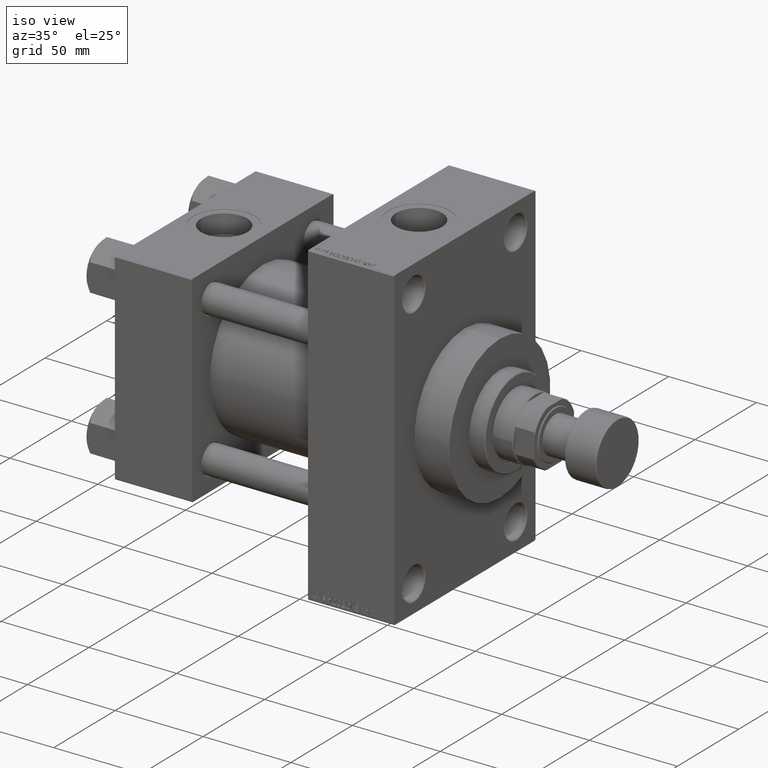
[diagram: clean part render]
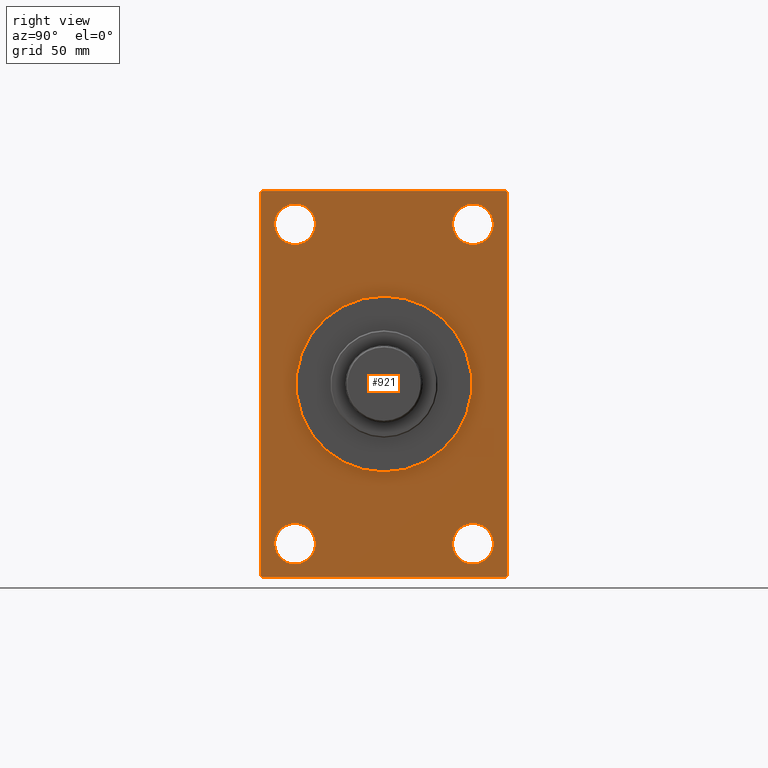
[diagram: tour spotlight — one face highlighted and labeled with its STEP entity id]
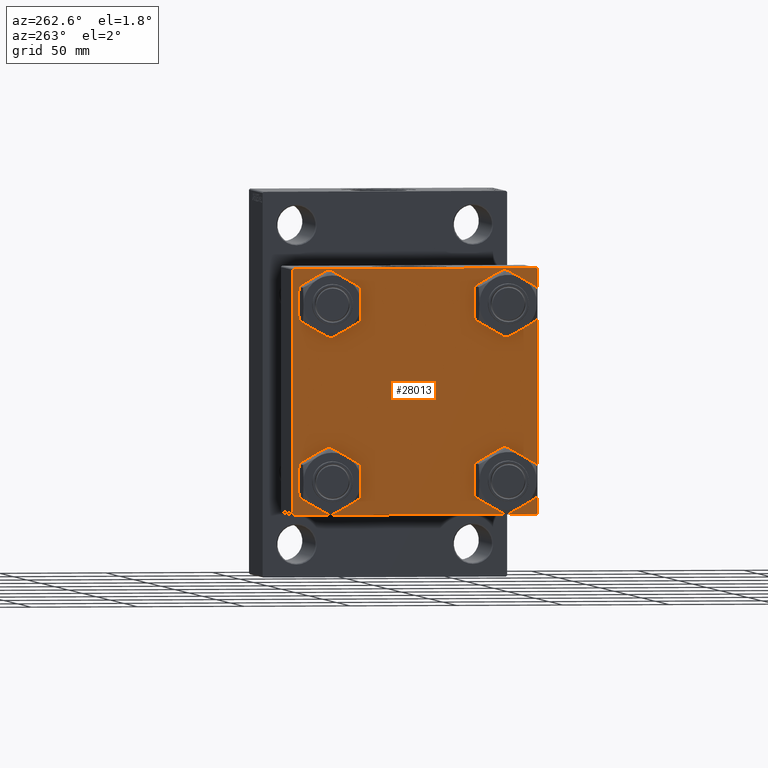
[diagram: tour spotlight — one face highlighted and labeled with its STEP entity id]
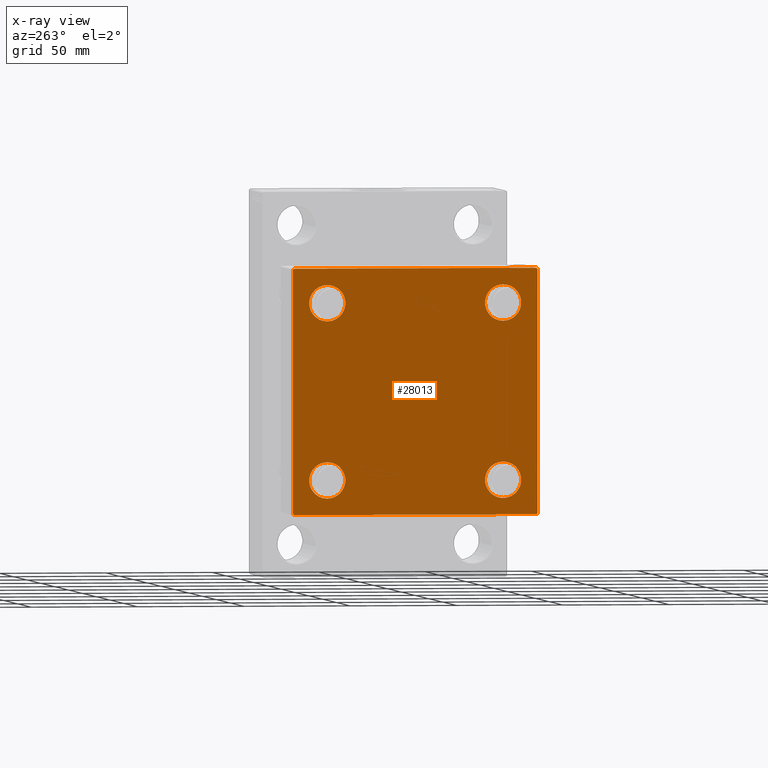
[diagram: x-ray of the same camera — body ghosted, this tour face saturated]
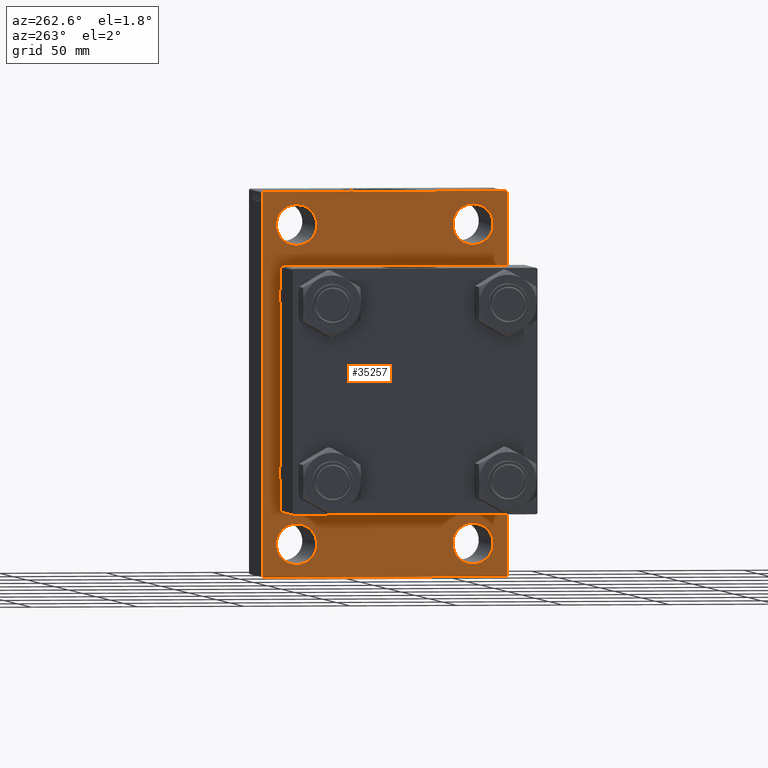
[diagram: tour spotlight — one face highlighted and labeled with its STEP entity id]
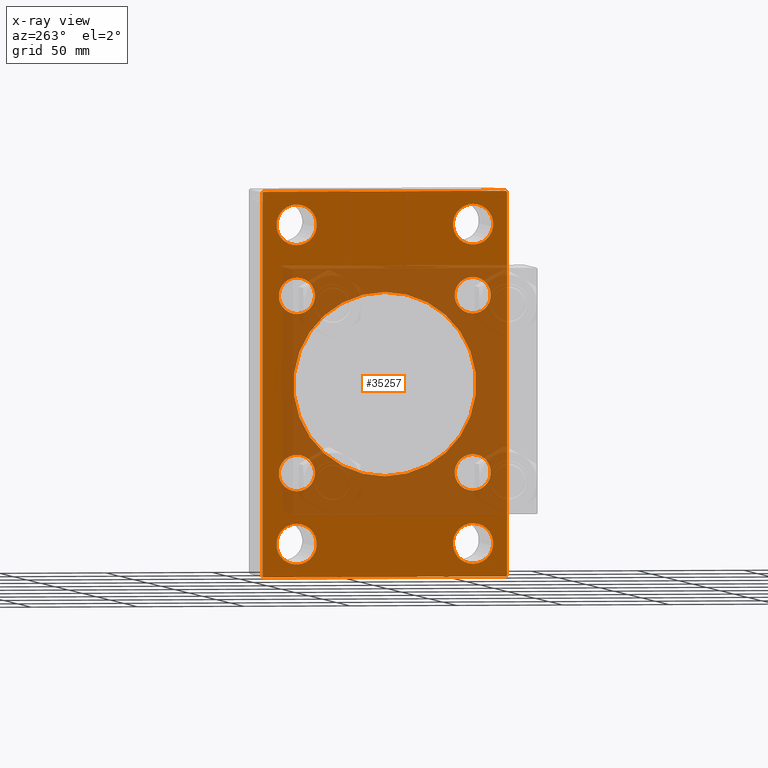
[diagram: x-ray of the same camera — body ghosted, this tour face saturated]
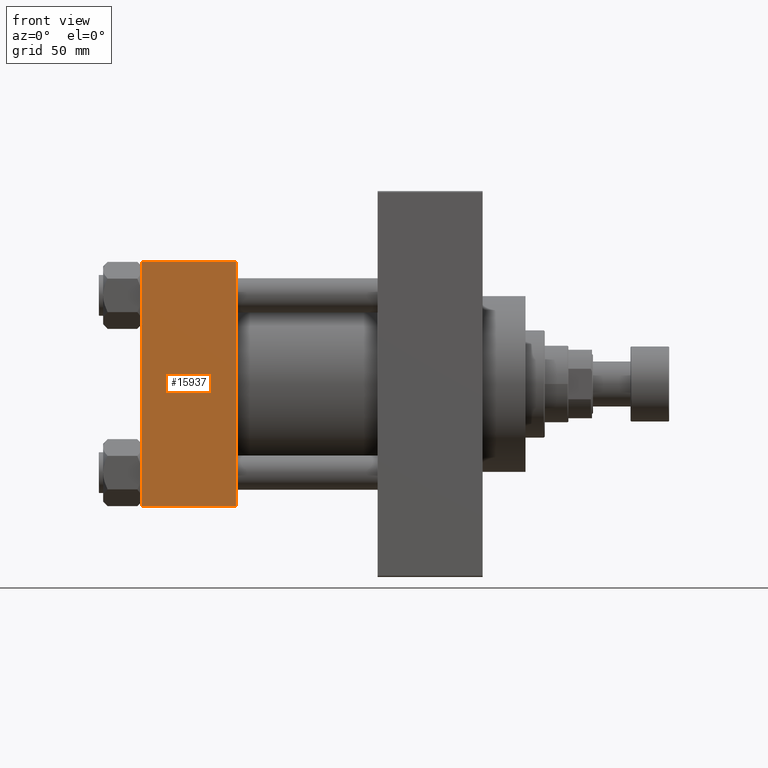
[diagram: tour spotlight — one face highlighted and labeled with its STEP entity id]
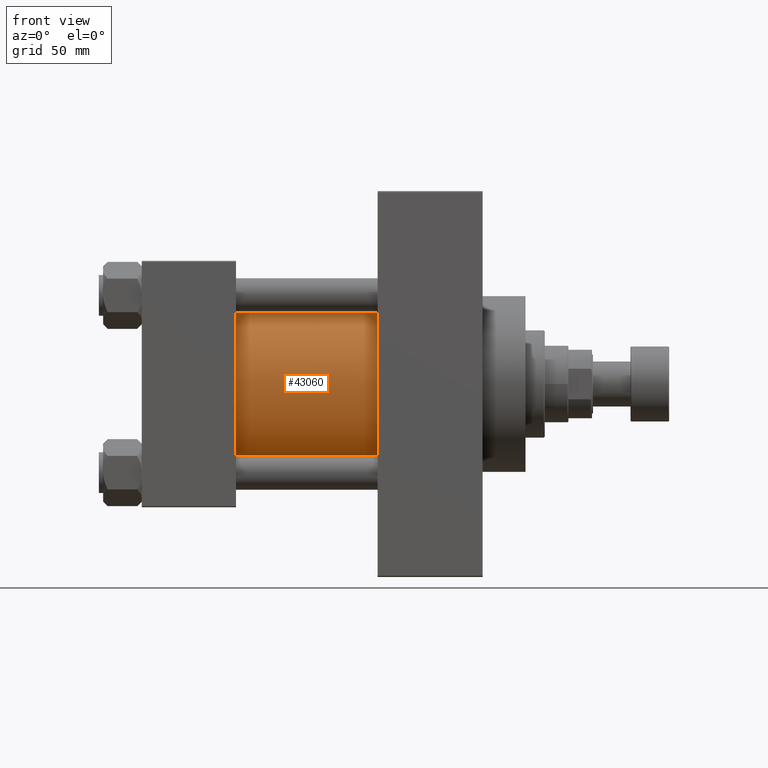
[diagram: tour spotlight — one face highlighted and labeled with its STEP entity id]
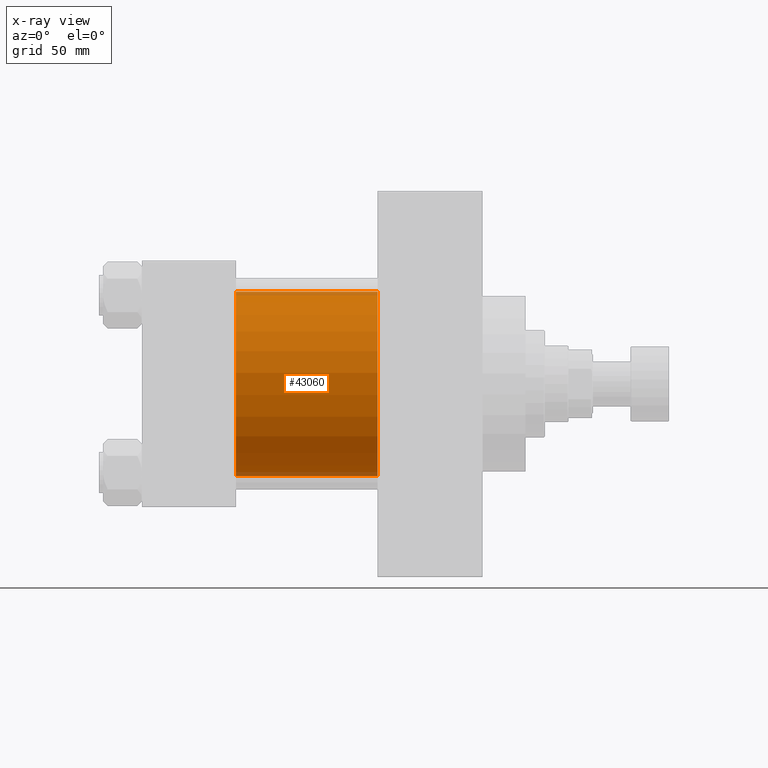
[diagram: x-ray of the same camera — body ghosted, this tour face saturated]
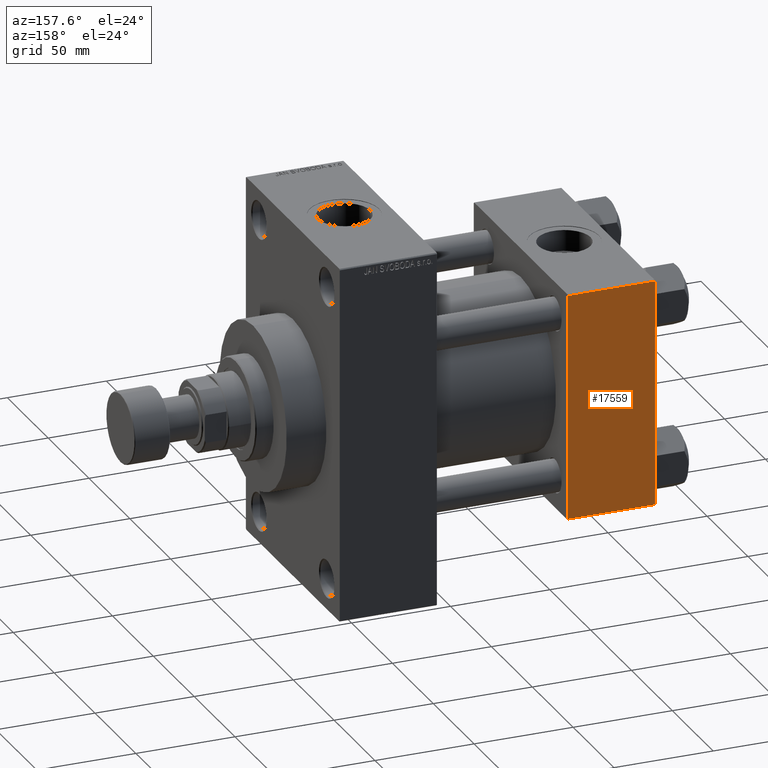
[diagram: tour spotlight — one face highlighted and labeled with its STEP entity id]
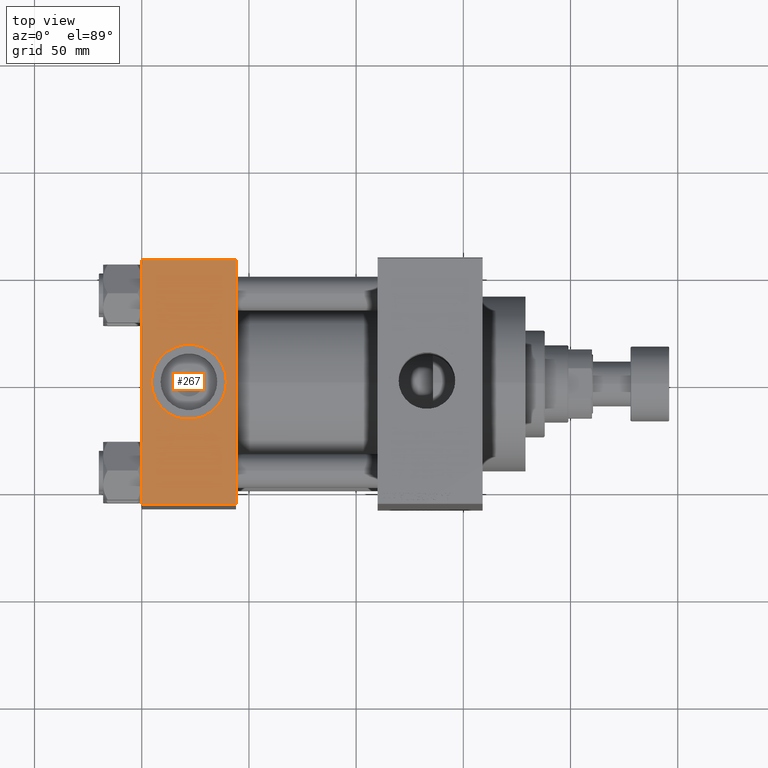
[diagram: tour spotlight — one face highlighted and labeled with its STEP entity id]
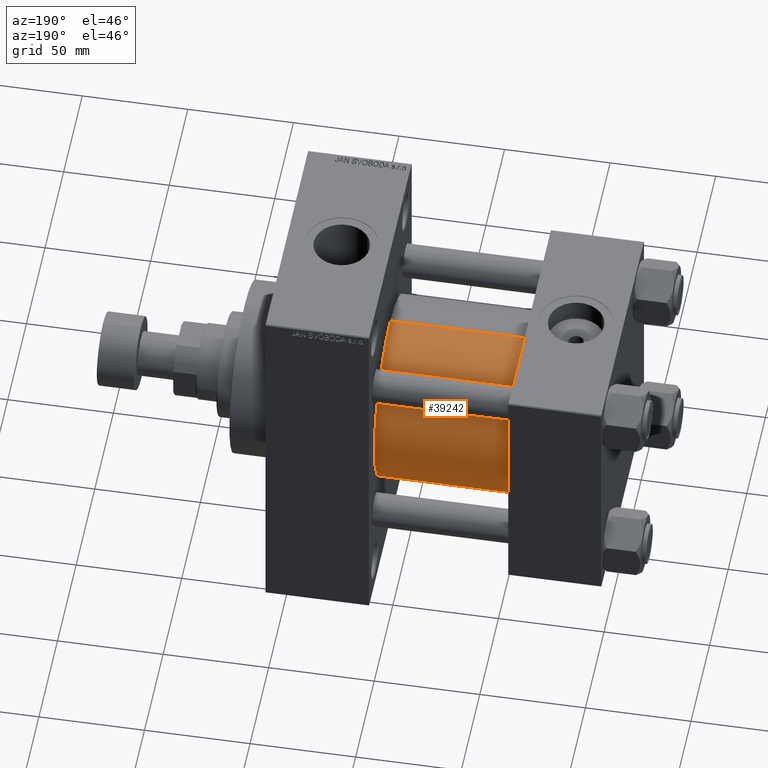
[diagram: tour spotlight — one face highlighted and labeled with its STEP entity id]
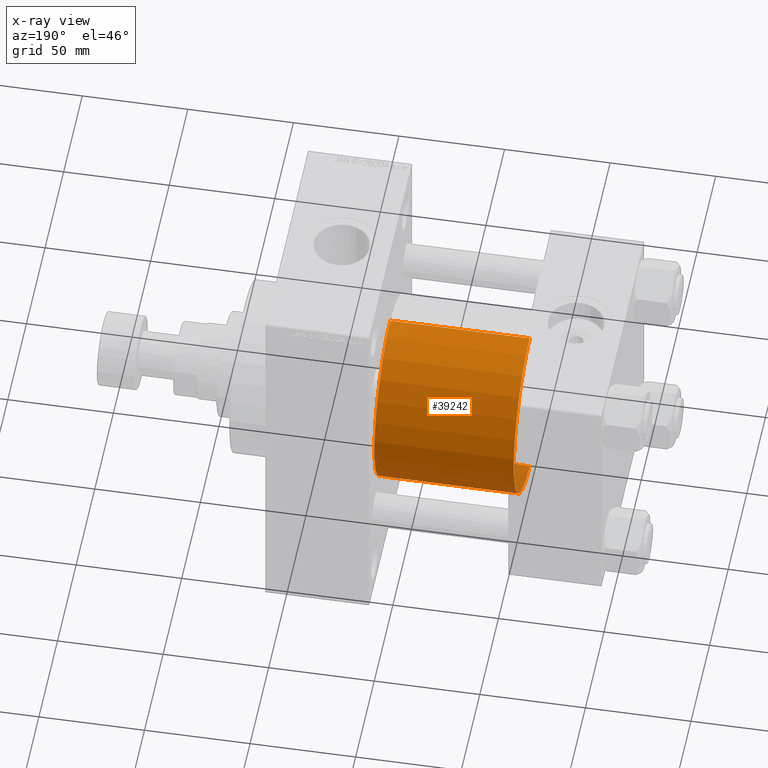
[diagram: x-ray of the same camera — body ghosted, this tour face saturated]
A machine part: a face-by-face anatomy tour. The part has 1165 B-rep faces; the first image is the clean iso view, then the 8 largest visible faces are spotlighted one at a time (largest first), each with its STEP entity span.

Face 1 — right view, entity #921. In plain terms, the highlighted planar face has unit normal (-1, 0, 0).
Definition (entity closure, byte-faithful):
#530 = AXIS2_PLACEMENT_3D ( 'NONE', #1635, #39598, #13546 ) ;
#860 = EDGE_CURVE ( 'NONE', #32908, #38445, #33563, .T. ) ;
#921 = ADVANCED_FACE ( 'NONE', ( #36986, #44539, #41123, #8028, #11418, #7773 ), #29917, .F. ) ;
#930 = VERTEX_POINT ( 'NONE', #26028 ) ;
#1202 = EDGE_LOOP ( 'NONE', ( #21463, #9049 ) ) ;
#1291 = LINE ( 'NONE', #28042, #3365 ) ;
#1635 = CARTESIAN_POINT ( 'NONE',  ( 159.0000000000000000, -41.50000000000000711, -74.49999999999998579 ) ) ;
#1911 = CARTESIAN_POINT ( 'NONE',  ( 159.0000000000000000, -57.50000000000000000, 89.49999999999994316 ) ) ;
#2309 = CARTESIAN_POINT ( 'NONE',  ( 159.0000000000000000, 41.49999999999999289, -74.49999999999998579 ) ) ;
#3097 = VERTEX_POINT ( 'NONE', #37391 ) ;
#3183 = CARTESIAN_POINT ( 'NONE',  ( 159.0000000000000000, 57.50000000000000000, 89.49999999999997158 ) ) ;
#3365 = VECTOR ( 'NONE', #24402, 1000.000000000000114 ) ;
#3667 = EDGE_CURVE ( 'NONE', #34673, #27412, #37514, .T. ) ;
#3702 = ORIENTED_EDGE ( 'NONE', *, *, #16576, .T. ) ;
#3999 = EDGE_LOOP ( 'NONE', ( #28201, #9041, #14958, #38321, #5376, #47060, #36504, #5933 ) ) ;
#4300 = DIRECTION ( 'NONE',  ( -1.000000000000000000, -0.000000000000000000, -0.000000000000000000 ) ) ;
#4595 = CARTESIAN_POINT ( 'NONE',  ( 159.0000000000000000, 57.50000000000000000, 90.00000000000000000 ) ) ;
#5001 = EDGE_CURVE ( 'NONE', #36497, #7460, #5650, .T. ) ;
#5048 = CARTESIAN_POINT ( 'NONE',  ( 159.0000000000000000, 5.021051876504148963E-15, -41.00000000000000000 ) ) ;
#5376 = ORIENTED_EDGE ( 'NONE', *, *, #860, .F. ) ;
#5552 = DIRECTION ( 'NONE',  ( 0.000000000000000000, -1.000000000000000000, 0.000000000000000000 ) ) ;
#5651 = AXIS2_PLACEMENT_3D ( 'NONE', #19004, #45312, #19472 ) ;
#5650 = LINE ( 'NONE', #12226, #21983 ) ;
#5742 = DIRECTION ( 'NONE',  ( 0.000000000000000000, 0.000000000000000000, 1.000000000000000000 ) ) ;
#5854 = DIRECTION ( 'NONE',  ( 0.000000000000000000, 0.000000000000000000, -1.000000000000000000 ) ) ;
#5868 = VERTEX_POINT ( 'NONE', #29768 ) ;
#5933 = ORIENTED_EDGE ( 'NONE', *, *, #47036, .T. ) ;
#7119 = DIRECTION ( 'NONE',  ( 0.000000000000000000, 0.000000000000000000, 1.000000000000000000 ) ) ;
#7179 = EDGE_CURVE ( 'NONE', #27812, #21927, #28233, .T. ) ;
#7460 = VERTEX_POINT ( 'NONE', #25504 ) ;
#7773 = FACE_OUTER_BOUND ( 'NONE', #3999, .T. ) ;
#7838 = CIRCLE ( 'NONE', #37400, 9.500000000000008882 ) ;
#7917 = VERTEX_POINT ( 'NONE', #39313 ) ;
#8028 = FACE_BOUND ( 'NONE', #1202, .T. ) ;
#8068 = CARTESIAN_POINT ( 'NONE',  ( 159.0000000000000000, 0.000000000000000000, 0.000000000000000000 ) ) ;
#8365 = DIRECTION ( 'NONE',  ( 1.000000000000000000, 0.000000000000000000, 0.000000000000000000 ) ) ;
#8457 = AXIS2_PLACEMENT_3D ( 'NONE', #29485, #40460, #7119 ) ;
#8713 = LINE ( 'NONE', #19627, #16372 ) ;
#8768 = DIRECTION ( 'NONE',  ( 0.000000000000000000, 0.000000000000000000, 1.000000000000000000 ) ) ;
#9025 = DIRECTION ( 'NONE',  ( 1.000000000000000000, 0.000000000000000000, 0.000000000000000000 ) ) ;
#9041 = ORIENTED_EDGE ( 'NONE', *, *, #44272, .T. ) ;
#9049 = ORIENTED_EDGE ( 'NONE', *, *, #20370, .T. ) ;
#9179 = CARTESIAN_POINT ( 'NONE',  ( 159.0000000000000000, 56.99999999999997158, 90.00000000000000000 ) ) ;
#9409 = LINE ( 'NONE', #9179, #32892 ) ;
#9738 = EDGE_CURVE ( 'NONE', #7917, #3097, #31392, .T. ) ;
#10185 = EDGE_CURVE ( 'NONE', #32548, #5868, #44606, .T. ) ;
#10955 = AXIS2_PLACEMENT_3D ( 'NONE', #22593, #23088, #29430 ) ;
#11418 = FACE_BOUND ( 'NONE', #47224, .T. ) ;
#11988 = AXIS2_PLACEMENT_3D ( 'NONE', #2309, #24220, #5742 ) ;
#12226 = CARTESIAN_POINT ( 'NONE',  ( 159.0000000000000000, 57.50000000000000000, -90.00000000000000000 ) ) ;
#12449 = CARTESIAN_POINT ( 'NONE',  ( 159.0000000000000000, -41.50000000000000711, 84.00000000000001421 ) ) ;
#12850 = CARTESIAN_POINT ( 'NONE',  ( 159.0000000000000000, 0.000000000000000000, 41.00000000000000000 ) ) ;
#13473 = CIRCLE ( 'NONE', #28247, 41.00000000000000000 ) ;
#13546 = DIRECTION ( 'NONE',  ( 0.000000000000000000, 0.000000000000000000, 1.000000000000000000 ) ) ;
#13603 = EDGE_CURVE ( 'NONE', #28776, #31064, #40119, .T. ) ;
#13858 = ORIENTED_EDGE ( 'NONE', *, *, #45442, .T. ) ;
#14299 = CIRCLE ( 'NONE', #11988, 9.500000000000008882 ) ;
#14353 = ORIENTED_EDGE ( 'NONE', *, *, #10185, .T. ) ;
#14958 = ORIENTED_EDGE ( 'NONE', *, *, #5001, .F. ) ;
#15057 = AXIS2_PLACEMENT_3D ( 'NONE', #29509, #33397, #26576 ) ;
#15726 = CARTESIAN_POINT ( 'NONE',  ( 159.0000000000000000, 41.49999999999999289, 74.50000000000001421 ) ) ;
#16372 = VECTOR ( 'NONE', #36118, 1000.000000000000114 ) ;
#16576 = EDGE_CURVE ( 'NONE', #5868, #32548, #34722, .T. ) ;
#16671 = DIRECTION ( 'NONE',  ( -1.000000000000000000, -0.000000000000000000, -0.000000000000000000 ) ) ;
#16896 = DIRECTION ( 'NONE',  ( 0.000000000000000000, 0.000000000000000000, 1.000000000000000000 ) ) ;
#18219 = VERTEX_POINT ( 'NONE', #29231 ) ;
#19004 = CARTESIAN_POINT ( 'NONE',  ( 159.0000000000000000, -41.50000000000000711, 74.50000000000001421 ) ) ;
#19181 = ORIENTED_EDGE ( 'NONE', *, *, #34735, .F. ) ;
#19472 = DIRECTION ( 'NONE',  ( 0.000000000000000000, 0.000000000000000000, 1.000000000000000000 ) ) ;
#19522 = CARTESIAN_POINT ( 'NONE',  ( 159.0000000000000000, 0.000000000000000000, 0.000000000000000000 ) ) ;
#19544 = EDGE_CURVE ( 'NONE', #33077, #18219, #24036, .T. ) ;
#19627 = CARTESIAN_POINT ( 'NONE',  ( 159.0000000000000000, -56.99999999999997158, -90.00000000000000000 ) ) ;
#20370 = EDGE_CURVE ( 'NONE', #3097, #7917, #42657, .T. ) ;
#21426 = AXIS2_PLACEMENT_3D ( 'NONE', #19522, #8365, #45110 ) ;
#21463 = ORIENTED_EDGE ( 'NONE', *, *, #9738, .T. ) ;
#21617 = CARTESIAN_POINT ( 'NONE',  ( 159.0000000000000000, -57.50000000000000000, 90.00000000000000000 ) ) ;
#21927 = VERTEX_POINT ( 'NONE', #43188 ) ;
#21983 = VECTOR ( 'NONE', #38759, 1000.000000000000000 ) ;
#22593 = CARTESIAN_POINT ( 'NONE',  ( 159.0000000000000000, 0.000000000000000000, 0.000000000000000000 ) ) ;
#22642 = DIRECTION ( 'NONE',  ( -0.000000000000000000, -0.7071067811865474617, -0.7071067811865474617 ) ) ;
#22851 = DIRECTION ( 'NONE',  ( 0.000000000000000000, 0.000000000000000000, -1.000000000000000000 ) ) ;
#23088 = DIRECTION ( 'NONE',  ( -1.000000000000000000, 0.000000000000000000, -0.000000000000000000 ) ) ;
#23534 = DIRECTION ( 'NONE',  ( 0.000000000000000000, -0.7071067811865474617, 0.7071067811865474617 ) ) ;
#24036 = LINE ( 'NONE', #38901, #30152 ) ;
#24220 = DIRECTION ( 'NONE',  ( -1.000000000000000000, -0.000000000000000000, -0.000000000000000000 ) ) ;
#24252 = VECTOR ( 'NONE', #5854, 1000.000000000000000 ) ;
#24402 = DIRECTION ( 'NONE',  ( -0.000000000000000000, 0.7071067811865474617, 0.7071067811865474617 ) ) ;
#24640 = ORIENTED_EDGE ( 'NONE', *, *, #3667, .T. ) ;
#25504 = CARTESIAN_POINT ( 'NONE',  ( 159.0000000000000000, -56.99999999999997158, -90.00000000000000000 ) ) ;
#25872 = CIRCLE ( 'NONE', #43752, 9.500000000000008882 ) ;
#26028 = CARTESIAN_POINT ( 'NONE',  ( 159.0000000000000000, 41.49999999999999289, -64.99999999999997158 ) ) ;
#26531 = CARTESIAN_POINT ( 'NONE',  ( 159.0000000000000000, 41.49999999999999289, -83.99999999999998579 ) ) ;
#26576 = DIRECTION ( 'NONE',  ( 0.000000000000000000, 0.000000000000000000, 1.000000000000000000 ) ) ;
#27257 = DIRECTION ( 'NONE',  ( 0.000000000000000000, 0.000000000000000000, -1.000000000000000000 ) ) ;
#27412 = VERTEX_POINT ( 'NONE', #12449 ) ;
#27812 = VERTEX_POINT ( 'NONE', #1911 ) ;
#28042 = CARTESIAN_POINT ( 'NONE',  ( 159.0000000000000000, 57.50000000000000000, -89.49999999999994316 ) ) ;
#28058 = EDGE_LOOP ( 'NONE', ( #14353, #3702 ) ) ;
#28201 = ORIENTED_EDGE ( 'NONE', *, *, #7179, .T. ) ;
#28233 = LINE ( 'NONE', #21617, #24252 ) ;
#28247 = AXIS2_PLACEMENT_3D ( 'NONE', #8068, #9025, #27257 ) ;
#28776 = VERTEX_POINT ( 'NONE', #5048 ) ;
#29052 = AXIS2_PLACEMENT_3D ( 'NONE', #15726, #4300, #41301 ) ;
#29231 = CARTESIAN_POINT ( 'NONE',  ( 159.0000000000000000, -56.99999999999994316, 90.00000000000000000 ) ) ;
#29430 = DIRECTION ( 'NONE',  ( -0.000000000000000000, 0.000000000000000000, 1.000000000000000000 ) ) ;
#29485 = CARTESIAN_POINT ( 'NONE',  ( 159.0000000000000000, 41.49999999999999289, 74.50000000000001421 ) ) ;
#29509 = CARTESIAN_POINT ( 'NONE',  ( 159.0000000000000000, -41.50000000000000711, -74.49999999999998579 ) ) ;
#29768 = CARTESIAN_POINT ( 'NONE',  ( 159.0000000000000000, -41.50000000000000711, -64.99999999999997158 ) ) ;
#29917 = PLANE ( 'NONE',  #10955 ) ;
#29935 = VERTEX_POINT ( 'NONE', #26531 ) ;
#30152 = VECTOR ( 'NONE', #5552, 1000.000000000000000 ) ;
#30893 = CARTESIAN_POINT ( 'NONE',  ( 159.0000000000000000, -41.50000000000000711, 74.50000000000001421 ) ) ;
#30909 = CARTESIAN_POINT ( 'NONE',  ( 159.0000000000000000, 56.99999999999997158, 90.00000000000000000 ) ) ;
#30922 = LINE ( 'NONE', #37515, #45188 ) ;
#30944 = ORIENTED_EDGE ( 'NONE', *, *, #40282, .T. ) ;
#31064 = VERTEX_POINT ( 'NONE', #12850 ) ;
#31392 = CIRCLE ( 'NONE', #29052, 9.500000000000008882 ) ;
#31842 = DIRECTION ( 'NONE',  ( -1.000000000000000000, -0.000000000000000000, -0.000000000000000000 ) ) ;
#32548 = VERTEX_POINT ( 'NONE', #37367 ) ;
#32892 = VECTOR ( 'NONE', #23534, 1000.000000000000114 ) ;
#32908 = VERTEX_POINT ( 'NONE', #3183 ) ;
#33077 = VERTEX_POINT ( 'NONE', #30909 ) ;
#33397 = DIRECTION ( 'NONE',  ( -1.000000000000000000, -0.000000000000000000, -0.000000000000000000 ) ) ;
#33563 = LINE ( 'NONE', #4595, #37402 ) ;
#33603 = CARTESIAN_POINT ( 'NONE',  ( 159.0000000000000000, -41.50000000000000711, 65.00000000000000000 ) ) ;
#33626 = CARTESIAN_POINT ( 'NONE',  ( 159.0000000000000000, 56.99999999999994316, -90.00000000000000000 ) ) ;
#34673 = VERTEX_POINT ( 'NONE', #33603 ) ;
#34722 = CIRCLE ( 'NONE', #530, 9.500000000000008882 ) ;
#34735 = EDGE_CURVE ( 'NONE', #31064, #28776, #13473, .T. ) ;
#35169 = CARTESIAN_POINT ( 'NONE',  ( 159.0000000000000000, 41.49999999999999289, -74.49999999999998579 ) ) ;
#35554 = EDGE_CURVE ( 'NONE', #36497, #38445, #1291, .T. ) ;
#36118 = DIRECTION ( 'NONE',  ( 0.000000000000000000, 0.7071067811865474617, -0.7071067811865474617 ) ) ;
#36337 = ORIENTED_EDGE ( 'NONE', *, *, #37425, .T. ) ;
#36497 = VERTEX_POINT ( 'NONE', #33626 ) ;
#36504 = ORIENTED_EDGE ( 'NONE', *, *, #19544, .T. ) ;
#36986 = FACE_BOUND ( 'NONE', #45063, .T. ) ;
#37367 = CARTESIAN_POINT ( 'NONE',  ( 159.0000000000000000, -41.50000000000000711, -83.99999999999998579 ) ) ;
#37391 = CARTESIAN_POINT ( 'NONE',  ( 159.0000000000000000, 41.49999999999999289, 84.00000000000001421 ) ) ;
#37400 = AXIS2_PLACEMENT_3D ( 'NONE', #35169, #16671, #16896 ) ;
#37402 = VECTOR ( 'NONE', #22851, 1000.000000000000000 ) ;
#37425 = EDGE_CURVE ( 'NONE', #27412, #34673, #25872, .T. ) ;
#37514 = CIRCLE ( 'NONE', #5651, 9.500000000000008882 ) ;
#37515 = CARTESIAN_POINT ( 'NONE',  ( 159.0000000000000000, -57.50000000000000000, 89.49999999999994316 ) ) ;
#37839 = EDGE_LOOP ( 'NONE', ( #30944, #13858 ) ) ;
#37854 = EDGE_CURVE ( 'NONE', #32908, #33077, #9409, .T. ) ;
#38321 = ORIENTED_EDGE ( 'NONE', *, *, #35554, .T. ) ;
#38445 = VERTEX_POINT ( 'NONE', #44622 ) ;
#38759 = DIRECTION ( 'NONE',  ( 0.000000000000000000, -1.000000000000000000, 0.000000000000000000 ) ) ;
#38901 = CARTESIAN_POINT ( 'NONE',  ( 159.0000000000000000, 57.50000000000000000, 90.00000000000000000 ) ) ;
#39313 = CARTESIAN_POINT ( 'NONE',  ( 159.0000000000000000, 41.49999999999999289, 65.00000000000000000 ) ) ;
#39598 = DIRECTION ( 'NONE',  ( -1.000000000000000000, -0.000000000000000000, -0.000000000000000000 ) ) ;
#40119 = CIRCLE ( 'NONE', #21426, 41.00000000000000000 ) ;
#40282 = EDGE_CURVE ( 'NONE', #29935, #930, #14299, .T. ) ;
#40460 = DIRECTION ( 'NONE',  ( -1.000000000000000000, -0.000000000000000000, -0.000000000000000000 ) ) ;
#41123 = FACE_BOUND ( 'NONE', #37839, .T. ) ;
#41301 = DIRECTION ( 'NONE',  ( 0.000000000000000000, 0.000000000000000000, 1.000000000000000000 ) ) ;
#42657 = CIRCLE ( 'NONE', #8457, 9.500000000000008882 ) ;
#43188 = CARTESIAN_POINT ( 'NONE',  ( 159.0000000000000000, -57.50000000000000000, -89.49999999999991473 ) ) ;
#43752 = AXIS2_PLACEMENT_3D ( 'NONE', #30893, #31842, #8768 ) ;
#44272 = EDGE_CURVE ( 'NONE', #21927, #7460, #8713, .T. ) ;
#44539 = FACE_BOUND ( 'NONE', #28058, .T. ) ;
#44606 = CIRCLE ( 'NONE', #15057, 9.500000000000008882 ) ;
#44622 = CARTESIAN_POINT ( 'NONE',  ( 159.0000000000000000, 57.50000000000000000, -89.49999999999988631 ) ) ;
#45063 = EDGE_LOOP ( 'NONE', ( #24640, #36337 ) ) ;
#45110 = DIRECTION ( 'NONE',  ( 0.000000000000000000, 0.000000000000000000, -1.000000000000000000 ) ) ;
#45188 = VECTOR ( 'NONE', #22642, 1000.000000000000114 ) ;
#45312 = DIRECTION ( 'NONE',  ( -1.000000000000000000, -0.000000000000000000, -0.000000000000000000 ) ) ;
#45442 = EDGE_CURVE ( 'NONE', #930, #29935, #7838, .T. ) ;
#47036 = EDGE_CURVE ( 'NONE', #18219, #27812, #30922, .T. ) ;
#47060 = ORIENTED_EDGE ( 'NONE', *, *, #37854, .T. ) ;
#47224 = EDGE_LOOP ( 'NONE', ( #19181, #47294 ) ) ;
#47294 = ORIENTED_EDGE ( 'NONE', *, *, #13603, .F. ) ;

Face 2 — auxiliary view, entity #28013. An x-ray twin of the same camera follows (body ghosted, this face saturated) — the face is partly hidden behind the body. In plain terms, the highlighted planar face has unit normal (-1, 0, 0).
Definition (entity closure, byte-faithful):
#123 = VERTEX_POINT ( 'NONE', #39620 ) ;
#380 = CARTESIAN_POINT ( 'NONE',  ( 0.000000000000000000, -41.34999999999998721, -32.85000000000000853 ) ) ;
#465 = CARTESIAN_POINT ( 'NONE',  ( 0.000000000000000000, 57.25000000000119371, -57.24999999999880629 ) ) ;
#595 = VERTEX_POINT ( 'NONE', #42158 ) ;
#913 = EDGE_CURVE ( 'NONE', #34768, #123, #14578, .T. ) ;
#978 = EDGE_CURVE ( 'NONE', #23946, #22869, #23398, .T. ) ;
#1070 = DIRECTION ( 'NONE',  ( 1.000000000000000000, -0.000000000000000000, 0.000000000000000000 ) ) ;
#2496 = ORIENTED_EDGE ( 'NONE', *, *, #30037, .T. ) ;
#2590 = CIRCLE ( 'NONE', #47574, 8.499999999999992895 ) ;
#2751 = DIRECTION ( 'NONE',  ( -1.000000000000000000, 0.000000000000000000, -0.000000000000000000 ) ) ;
#2886 = CARTESIAN_POINT ( 'NONE',  ( 0.000000000000000000, 41.34999999999999432, 41.34999999999999432 ) ) ;
#2895 = DIRECTION ( 'NONE',  ( 1.000000000000000000, -0.000000000000000000, 0.000000000000000000 ) ) ;
#3232 = VECTOR ( 'NONE', #11184, 999.9999999999998863 ) ;
#3470 = EDGE_CURVE ( 'NONE', #595, #16027, #31294, .T. ) ;
#3583 = VERTEX_POINT ( 'NONE', #16851 ) ;
#5055 = DIRECTION ( 'NONE',  ( 1.000000000000000000, -0.000000000000000000, 0.000000000000000000 ) ) ;
#5326 = EDGE_CURVE ( 'NONE', #16027, #595, #2590, .T. ) ;
#5785 = CARTESIAN_POINT ( 'NONE',  ( 0.000000000000000000, 41.34999999999999432, -49.84999999999999432 ) ) ;
#5866 = ORIENTED_EDGE ( 'NONE', *, *, #41692, .T. ) ;
#6220 = LINE ( 'NONE', #9870, #24050 ) ;
#7003 = EDGE_LOOP ( 'NONE', ( #33123, #2496 ) ) ;
#7240 = DIRECTION ( 'NONE',  ( 1.000000000000000000, -0.000000000000000000, 0.000000000000000000 ) ) ;
#7374 = CARTESIAN_POINT ( 'NONE',  ( 0.000000000000000000, -41.34999999999998721, -49.85000000000000142 ) ) ;
#7474 = EDGE_LOOP ( 'NONE', ( #21631, #24696, #5866, #27535, #8892, #45275, #9104, #41496 ) ) ;
#8265 = DIRECTION ( 'NONE',  ( -0.000000000000000000, -0.7071067811865328068, -0.7071067811865622277 ) ) ;
#8330 = DIRECTION ( 'NONE',  ( 0.000000000000000000, -1.000000000000000000, -1.206764157201257291E-16 ) ) ;
#8892 = ORIENTED_EDGE ( 'NONE', *, *, #28439, .F. ) ;
#8942 = PLANE ( 'NONE',  #25658 ) ;
#9104 = ORIENTED_EDGE ( 'NONE', *, *, #42081, .F. ) ;
#9166 = FACE_BOUND ( 'NONE', #17227, .T. ) ;
#9523 = DIRECTION ( 'NONE',  ( 0.000000000000000000, 6.033820786006285224E-17, -1.000000000000000000 ) ) ;
#9870 = CARTESIAN_POINT ( 'NONE',  ( 0.000000000000000000, 57.50000000000000000, 57.50000000000001421 ) ) ;
#10049 = FACE_BOUND ( 'NONE', #14851, .T. ) ;
#10111 = DIRECTION ( 'NONE',  ( 0.000000000000000000, -1.000000000000000000, -1.810146235801885567E-16 ) ) ;
#10217 = CARTESIAN_POINT ( 'NONE',  ( -0.000000000000000000, -57.24999999999918998, 57.25000000000078160 ) ) ;
#10425 = VERTEX_POINT ( 'NONE', #37496 ) ;
#10472 = ORIENTED_EDGE ( 'NONE', *, *, #5326, .T. ) ;
#10921 = AXIS2_PLACEMENT_3D ( 'NONE', #40343, #7240, #37403 ) ;
#11184 = DIRECTION ( 'NONE',  ( -0.000000000000000000, 0.7071067811865574537, 0.7071067811865376918 ) ) ;
#11766 = LINE ( 'NONE', #46725, #35126 ) ;
#12031 = ORIENTED_EDGE ( 'NONE', *, *, #15578, .T. ) ;
#12250 = DIRECTION ( 'NONE',  ( 0.000000000000000000, 0.000000000000000000, 1.000000000000000000 ) ) ;
#12323 = FACE_BOUND ( 'NONE', #7003, .T. ) ;
#12922 = VERTEX_POINT ( 'NONE', #23181 ) ;
#13090 = DIRECTION ( 'NONE',  ( 1.000000000000000000, -0.000000000000000000, 0.000000000000000000 ) ) ;
#13141 = LINE ( 'NONE', #15850, #16194 ) ;
#13177 = VERTEX_POINT ( 'NONE', #5785 ) ;
#13244 = CIRCLE ( 'NONE', #19447, 8.499999999999992895 ) ;
#14578 = LINE ( 'NONE', #465, #17158 ) ;
#14830 = EDGE_CURVE ( 'NONE', #3583, #29331, #28491, .T. ) ;
#14851 = EDGE_LOOP ( 'NONE', ( #10472, #22921 ) ) ;
#15143 = CARTESIAN_POINT ( 'NONE',  ( 0.000000000000000000, 57.50000000000000000, -57.49999999999999289 ) ) ;
#15578 = EDGE_CURVE ( 'NONE', #10425, #12922, #18363, .T. ) ;
#15850 = CARTESIAN_POINT ( 'NONE',  ( 0.000000000000000000, -57.24999999999962341, -57.25000000000041211 ) ) ;
#16027 = VERTEX_POINT ( 'NONE', #36773 ) ;
#16074 = CARTESIAN_POINT ( 'NONE',  ( 0.000000000000000000, 41.34999999999999432, -32.85000000000000142 ) ) ;
#16194 = VECTOR ( 'NONE', #38240, 1000.000000000000000 ) ;
#16406 = AXIS2_PLACEMENT_3D ( 'NONE', #27212, #13090, #30876 ) ;
#16809 = CARTESIAN_POINT ( 'NONE',  ( 0.000000000000000000, -41.34999999999998721, -41.35000000000000142 ) ) ;
#16851 = CARTESIAN_POINT ( 'NONE',  ( 0.000000000000000000, 57.00000000000001421, 57.50000000000001421 ) ) ;
#17043 = DIRECTION ( 'NONE',  ( 0.000000000000000000, 0.7071067811865573427, -0.7071067811865376918 ) ) ;
#17158 = VECTOR ( 'NONE', #8265, 1000.000000000000000 ) ;
#17227 = EDGE_LOOP ( 'NONE', ( #23347, #12031 ) ) ;
#17571 = FACE_BOUND ( 'NONE', #25400, .T. ) ;
#17706 = DIRECTION ( 'NONE',  ( 0.000000000000000000, 0.000000000000000000, 1.000000000000000000 ) ) ;
#17712 = DIRECTION ( 'NONE',  ( 0.000000000000000000, 0.000000000000000000, 1.000000000000000000 ) ) ;
#18363 = CIRCLE ( 'NONE', #24592, 8.499999999999992895 ) ;
#19097 = EDGE_CURVE ( 'NONE', #32791, #42228, #13141, .T. ) ;
#19447 = AXIS2_PLACEMENT_3D ( 'NONE', #16809, #20914, #46290 ) ;
#19870 = DIRECTION ( 'NONE',  ( 0.000000000000000000, 0.000000000000000000, 1.000000000000000000 ) ) ;
#20914 = DIRECTION ( 'NONE',  ( 1.000000000000000000, -0.000000000000000000, 0.000000000000000000 ) ) ;
#21462 = CARTESIAN_POINT ( 'NONE',  ( 0.000000000000000000, 0.000000000000000000, 0.000000000000000000 ) ) ;
#21631 = ORIENTED_EDGE ( 'NONE', *, *, #30819, .T. ) ;
#21828 = CARTESIAN_POINT ( 'NONE',  ( 0.000000000000000000, 57.50000000000000000, 57.00000000000004263 ) ) ;
#22869 = VERTEX_POINT ( 'NONE', #380 ) ;
#22921 = ORIENTED_EDGE ( 'NONE', *, *, #3470, .T. ) ;
#23181 = CARTESIAN_POINT ( 'NONE',  ( 0.000000000000000000, -41.34999999999998721, 49.85000000000000142 ) ) ;
#23347 = ORIENTED_EDGE ( 'NONE', *, *, #40888, .T. ) ;
#23381 = VECTOR ( 'NONE', #9523, 1000.000000000000000 ) ;
#23398 = CIRCLE ( 'NONE', #16406, 8.499999999999992895 ) ;
#23538 = CARTESIAN_POINT ( 'NONE',  ( 0.000000000000000000, -41.34999999999998721, 41.35000000000000142 ) ) ;
#23762 = FACE_OUTER_BOUND ( 'NONE', #7474, .T. ) ;
#23900 = CARTESIAN_POINT ( 'NONE',  ( 0.000000000000000000, -57.00000000000001421, -57.50000000000000711 ) ) ;
#23946 = VERTEX_POINT ( 'NONE', #7374 ) ;
#24050 = VECTOR ( 'NONE', #10111, 1000.000000000000000 ) ;
#24114 = CARTESIAN_POINT ( 'NONE',  ( 0.000000000000000000, -57.50000000000000000, 57.49999999999999289 ) ) ;
#24312 = CIRCLE ( 'NONE', #35984, 8.499999999999992895 ) ;
#24592 = AXIS2_PLACEMENT_3D ( 'NONE', #23538, #5055, #19870 ) ;
#24696 = ORIENTED_EDGE ( 'NONE', *, *, #913, .T. ) ;
#25400 = EDGE_LOOP ( 'NONE', ( #26629, #26797 ) ) ;
#25420 = CARTESIAN_POINT ( 'NONE',  ( 0.000000000000000000, -57.49999999999999289, -57.00000000000003553 ) ) ;
#25658 = AXIS2_PLACEMENT_3D ( 'NONE', #21462, #2751, #38623 ) ;
#26618 = AXIS2_PLACEMENT_3D ( 'NONE', #45118, #38055, #12250 ) ;
#26629 = ORIENTED_EDGE ( 'NONE', *, *, #41814, .T. ) ;
#26797 = ORIENTED_EDGE ( 'NONE', *, *, #978, .T. ) ;
#27095 = DIRECTION ( 'NONE',  ( 0.000000000000000000, 0.000000000000000000, 1.000000000000000000 ) ) ;
#27212 = CARTESIAN_POINT ( 'NONE',  ( 0.000000000000000000, -41.34999999999998721, -41.35000000000000142 ) ) ;
#27535 = ORIENTED_EDGE ( 'NONE', *, *, #19097, .T. ) ;
#28013 = ADVANCED_FACE ( 'NONE', ( #9166, #17571, #12323, #10049, #23762 ), #8942, .T. ) ;
#28228 = DIRECTION ( 'NONE',  ( 0.000000000000000000, 0.000000000000000000, -1.000000000000000000 ) ) ;
#28439 = EDGE_CURVE ( 'NONE', #47445, #42228, #42638, .T. ) ;
#28491 = LINE ( 'NONE', #35327, #30824 ) ;
#29331 = VERTEX_POINT ( 'NONE', #21828 ) ;
#30037 = EDGE_CURVE ( 'NONE', #13177, #47034, #38188, .T. ) ;
#30819 = EDGE_CURVE ( 'NONE', #29331, #34768, #11766, .T. ) ;
#30824 = VECTOR ( 'NONE', #17043, 1000.000000000000114 ) ;
#30876 = DIRECTION ( 'NONE',  ( 0.000000000000000000, 0.000000000000000000, 1.000000000000000000 ) ) ;
#31153 = CIRCLE ( 'NONE', #10921, 8.499999999999992895 ) ;
#31203 = AXIS2_PLACEMENT_3D ( 'NONE', #43320, #2895, #17712 ) ;
#31294 = CIRCLE ( 'NONE', #26618, 8.499999999999992895 ) ;
#31854 = DIRECTION ( 'NONE',  ( 1.000000000000000000, -0.000000000000000000, 0.000000000000000000 ) ) ;
#32791 = VERTEX_POINT ( 'NONE', #23900 ) ;
#33123 = ORIENTED_EDGE ( 'NONE', *, *, #37098, .T. ) ;
#34351 = CARTESIAN_POINT ( 'NONE',  ( 0.000000000000000000, -56.99999999999997158, 57.49999999999999289 ) ) ;
#34656 = CARTESIAN_POINT ( 'NONE',  ( 0.000000000000000000, 41.34999999999999432, -41.34999999999999432 ) ) ;
#34768 = VERTEX_POINT ( 'NONE', #45772 ) ;
#35126 = VECTOR ( 'NONE', #28228, 1000.000000000000000 ) ;
#35327 = CARTESIAN_POINT ( 'NONE',  ( 0.000000000000000000, 57.24999999999922551, 57.25000000000081712 ) ) ;
#35984 = AXIS2_PLACEMENT_3D ( 'NONE', #34656, #1070, #27095 ) ;
#36512 = VERTEX_POINT ( 'NONE', #34351 ) ;
#36773 = CARTESIAN_POINT ( 'NONE',  ( 0.000000000000000000, 41.34999999999999432, 49.84999999999999432 ) ) ;
#37098 = EDGE_CURVE ( 'NONE', #47034, #13177, #24312, .T. ) ;
#37403 = DIRECTION ( 'NONE',  ( 0.000000000000000000, 0.000000000000000000, 1.000000000000000000 ) ) ;
#37496 = CARTESIAN_POINT ( 'NONE',  ( 0.000000000000000000, -41.34999999999998721, 32.85000000000000853 ) ) ;
#38055 = DIRECTION ( 'NONE',  ( 1.000000000000000000, -0.000000000000000000, 0.000000000000000000 ) ) ;
#38188 = CIRCLE ( 'NONE', #31203, 8.499999999999992895 ) ;
#38240 = DIRECTION ( 'NONE',  ( 0.000000000000000000, -0.7071067811865524577, 0.7071067811865426878 ) ) ;
#38623 = DIRECTION ( 'NONE',  ( -0.000000000000000000, 0.000000000000000000, 1.000000000000000000 ) ) ;
#39620 = CARTESIAN_POINT ( 'NONE',  ( 0.000000000000000000, 57.00000000000002842, -57.49999999999999289 ) ) ;
#40343 = CARTESIAN_POINT ( 'NONE',  ( 0.000000000000000000, -41.34999999999998721, 41.35000000000000142 ) ) ;
#40888 = EDGE_CURVE ( 'NONE', #12922, #10425, #31153, .T. ) ;
#41480 = CARTESIAN_POINT ( 'NONE',  ( 0.000000000000000000, -57.50000000000000000, 56.99999999999997868 ) ) ;
#41496 = ORIENTED_EDGE ( 'NONE', *, *, #14830, .T. ) ;
#41692 = EDGE_CURVE ( 'NONE', #123, #32791, #45324, .T. ) ;
#41814 = EDGE_CURVE ( 'NONE', #22869, #23946, #13244, .T. ) ;
#42033 = VECTOR ( 'NONE', #8330, 1000.000000000000000 ) ;
#42081 = EDGE_CURVE ( 'NONE', #3583, #36512, #6220, .T. ) ;
#42158 = CARTESIAN_POINT ( 'NONE',  ( 0.000000000000000000, 41.34999999999999432, 32.85000000000000142 ) ) ;
#42228 = VERTEX_POINT ( 'NONE', #25420 ) ;
#42638 = LINE ( 'NONE', #24114, #23381 ) ;
#43320 = CARTESIAN_POINT ( 'NONE',  ( 0.000000000000000000, 41.34999999999999432, -41.34999999999999432 ) ) ;
#45118 = CARTESIAN_POINT ( 'NONE',  ( 0.000000000000000000, 41.34999999999999432, 41.34999999999999432 ) ) ;
#45275 = ORIENTED_EDGE ( 'NONE', *, *, #47939, .T. ) ;
#45324 = LINE ( 'NONE', #15143, #42033 ) ;
#45772 = CARTESIAN_POINT ( 'NONE',  ( 0.000000000000000000, 57.50000000000000000, -56.99999999999997158 ) ) ;
#46290 = DIRECTION ( 'NONE',  ( 0.000000000000000000, 0.000000000000000000, 1.000000000000000000 ) ) ;
#46725 = CARTESIAN_POINT ( 'NONE',  ( 0.000000000000000000, 57.50000000000000000, 57.50000000000001421 ) ) ;
#47034 = VERTEX_POINT ( 'NONE', #16074 ) ;
#47445 = VERTEX_POINT ( 'NONE', #41480 ) ;
#47574 = AXIS2_PLACEMENT_3D ( 'NONE', #2886, #31854, #17706 ) ;
#47695 = LINE ( 'NONE', #10217, #3232 ) ;
#47939 = EDGE_CURVE ( 'NONE', #47445, #36512, #47695, .T. ) ;

Face 3 — auxiliary view, entity #35257. An x-ray twin of the same camera follows (body ghosted, this face saturated) — the face is partly hidden behind the body. In plain terms, the highlighted planar face has unit normal (-1, 0, 0).
Definition (entity closure, byte-faithful):
#92 = DIRECTION ( 'NONE',  ( 0.000000000000000000, 0.000000000000000000, 1.000000000000000000 ) ) ;
#348 = CIRCLE ( 'NONE', #5014, 8.500000000000007105 ) ;
#484 = ORIENTED_EDGE ( 'NONE', *, *, #17753, .T. ) ;
#583 = VERTEX_POINT ( 'NONE', #4423 ) ;
#606 = DIRECTION ( 'NONE',  ( 1.000000000000000000, 0.000000000000000000, 0.000000000000000000 ) ) ;
#624 = DIRECTION ( 'NONE',  ( -0.000000000000000000, 0.000000000000000000, 1.000000000000000000 ) ) ;
#990 = VERTEX_POINT ( 'NONE', #35004 ) ;
#1415 = EDGE_CURVE ( 'NONE', #14523, #42344, #37435, .T. ) ;
#1552 = CARTESIAN_POINT ( 'NONE',  ( 110.0000000000000000, 73.49999999999995737, -73.49999999999995737 ) ) ;
#1788 = CARTESIAN_POINT ( 'NONE',  ( 110.0000000000000000, 57.50000000000000000, 89.49999999999997158 ) ) ;
#1989 = DIRECTION ( 'NONE',  ( 1.000000000000000000, 0.000000000000000000, 0.000000000000000000 ) ) ;
#2027 = CARTESIAN_POINT ( 'NONE',  ( 110.0000000000000000, 56.99999999999994316, -90.00000000000000000 ) ) ;
#2084 = DIRECTION ( 'NONE',  ( 1.000000000000000000, 0.000000000000000000, 0.000000000000000000 ) ) ;
#2171 = CARTESIAN_POINT ( 'NONE',  ( 110.0000000000000000, 41.34999999999999432, 32.84999999999998721 ) ) ;
#2392 = ORIENTED_EDGE ( 'NONE', *, *, #32520, .T. ) ;
#2501 = CARTESIAN_POINT ( 'NONE',  ( 110.0000000000000000, -41.34999999999998721, -32.84999999999999432 ) ) ;
#3120 = CARTESIAN_POINT ( 'NONE',  ( 110.0000000000000000, 57.50000000000000000, -90.00000000000000000 ) ) ;
#3244 = CARTESIAN_POINT ( 'NONE',  ( 110.0000000000000000, -57.50000000000000000, -89.49999999999991473 ) ) ;
#3351 = ORIENTED_EDGE ( 'NONE', *, *, #17324, .T. ) ;
#3433 = DIRECTION ( 'NONE',  ( 1.000000000000000000, 0.000000000000000000, 0.000000000000000000 ) ) ;
#3523 = LINE ( 'NONE', #18342, #17076 ) ;
#3715 = CIRCLE ( 'NONE', #28588, 8.500000000000007105 ) ;
#4423 = CARTESIAN_POINT ( 'NONE',  ( 110.0000000000000000, 2.663896022368408223E-15, -43.00000000000000000 ) ) ;
#4607 = EDGE_CURVE ( 'NONE', #18959, #21953, #13764, .T. ) ;
#4649 = CARTESIAN_POINT ( 'NONE',  ( 110.0000000000000000, 41.49999999999999289, 74.50000000000001421 ) ) ;
#4719 = ORIENTED_EDGE ( 'NONE', *, *, #26973, .T. ) ;
#4739 = EDGE_LOOP ( 'NONE', ( #8627, #35321 ) ) ;
#4809 = LINE ( 'NONE', #12345, #21489 ) ;
#5014 = AXIS2_PLACEMENT_3D ( 'NONE', #35833, #46098, #12976 ) ;
#5221 = EDGE_CURVE ( 'NONE', #19554, #43352, #35968, .T. ) ;
#5240 = CARTESIAN_POINT ( 'NONE',  ( 110.0000000000000000, 41.34999999999999432, -41.34999999999999432 ) ) ;
#5633 = AXIS2_PLACEMENT_3D ( 'NONE', #8894, #19803, #42469 ) ;
#5744 = CIRCLE ( 'NONE', #22001, 8.500000000000007105 ) ;
#6611 = CARTESIAN_POINT ( 'NONE',  ( 110.0000000000000000, -41.34999999999998721, -41.35000000000000142 ) ) ;
#6655 = CARTESIAN_POINT ( 'NONE',  ( 110.0000000000000000, -41.34999999999998721, -49.85000000000001563 ) ) ;
#6960 = EDGE_LOOP ( 'NONE', ( #40648, #32613 ) ) ;
#7080 = CARTESIAN_POINT ( 'NONE',  ( 110.0000000000000000, 57.50000000000000000, -89.49999999999988631 ) ) ;
#7379 = CARTESIAN_POINT ( 'NONE',  ( 110.0000000000000000, -56.99999999999994316, 90.00000000000000000 ) ) ;
#8074 = EDGE_CURVE ( 'NONE', #583, #36381, #26651, .T. ) ;
#8496 = EDGE_LOOP ( 'NONE', ( #29146, #27223 ) ) ;
#8538 = EDGE_CURVE ( 'NONE', #39751, #21763, #25124, .T. ) ;
#8627 = ORIENTED_EDGE ( 'NONE', *, *, #40549, .T. ) ;
#8638 = ORIENTED_EDGE ( 'NONE', *, *, #5221, .T. ) ;
#8894 = CARTESIAN_POINT ( 'NONE',  ( 110.0000000000000000, 41.49999999999999289, 74.50000000000001421 ) ) ;
#9468 = CIRCLE ( 'NONE', #40568, 9.500000000000035527 ) ;
#10108 = CARTESIAN_POINT ( 'NONE',  ( 110.0000000000000000, -41.50000000000000711, -74.49999999999998579 ) ) ;
#10214 = ORIENTED_EDGE ( 'NONE', *, *, #1415, .T. ) ;
#10845 = AXIS2_PLACEMENT_3D ( 'NONE', #28593, #43704, #21289 ) ;
#11627 = CARTESIAN_POINT ( 'NONE',  ( 110.0000000000000000, -2.602085213965210642E-15, 0.000000000000000000 ) ) ;
#11958 = AXIS2_PLACEMENT_3D ( 'NONE', #32341, #27972, #17001 ) ;
#12056 = DIRECTION ( 'NONE',  ( 1.000000000000000000, 0.000000000000000000, 0.000000000000000000 ) ) ;
#12301 = FACE_OUTER_BOUND ( 'NONE', #29998, .T. ) ;
#12345 = CARTESIAN_POINT ( 'NONE',  ( 110.0000000000000000, -73.49999999999997158, -73.49999999999997158 ) ) ;
#12559 = AXIS2_PLACEMENT_3D ( 'NONE', #10108, #2084, #13521 ) ;
#12801 = DIRECTION ( 'NONE',  ( 0.000000000000000000, 0.000000000000000000, -1.000000000000000000 ) ) ;
#12926 = CARTESIAN_POINT ( 'NONE',  ( 110.0000000000000000, -41.34999999999998721, 49.85000000000001563 ) ) ;
#12976 = DIRECTION ( 'NONE',  ( 0.000000000000000000, 0.000000000000000000, 1.000000000000000000 ) ) ;
#12998 = VECTOR ( 'NONE', #16243, 1000.000000000000114 ) ;
#13059 = EDGE_CURVE ( 'NONE', #36381, #583, #19242, .T. ) ;
#13160 = CIRCLE ( 'NONE', #46593, 8.500000000000007105 ) ;
#13521 = DIRECTION ( 'NONE',  ( 0.000000000000000000, 0.000000000000000000, 1.000000000000000000 ) ) ;
#13643 = DIRECTION ( 'NONE',  ( 0.000000000000000000, 0.000000000000000000, -1.000000000000000000 ) ) ;
#13764 = LINE ( 'NONE', #40544, #35211 ) ;
#13871 = CARTESIAN_POINT ( 'NONE',  ( 110.0000000000000000, -57.50000000000000000, 90.00000000000000000 ) ) ;
#14204 = DIRECTION ( 'NONE',  ( 1.000000000000000000, 0.000000000000000000, 0.000000000000000000 ) ) ;
#14290 = ORIENTED_EDGE ( 'NONE', *, *, #23728, .T. ) ;
#14523 = VERTEX_POINT ( 'NONE', #28296 ) ;
#14872 = ORIENTED_EDGE ( 'NONE', *, *, #38582, .T. ) ;
#15451 = CARTESIAN_POINT ( 'NONE',  ( 110.0000000000000000, -41.50000000000000711, 74.50000000000001421 ) ) ;
#15654 = DIRECTION ( 'NONE',  ( 0.000000000000000000, 0.000000000000000000, 1.000000000000000000 ) ) ;
#16243 = DIRECTION ( 'NONE',  ( -0.000000000000000000, 0.7071067811865474617, 0.7071067811865474617 ) ) ;
#16362 = EDGE_CURVE ( 'NONE', #27155, #26994, #25265, .T. ) ;
#16400 = AXIS2_PLACEMENT_3D ( 'NONE', #4649, #23627, #92 ) ;
#16509 = EDGE_CURVE ( 'NONE', #26994, #44419, #4809, .T. ) ;
#16732 = DIRECTION ( 'NONE',  ( 0.000000000000000000, 0.000000000000000000, 1.000000000000000000 ) ) ;
#17001 = DIRECTION ( 'NONE',  ( 0.000000000000000000, 0.000000000000000000, 1.000000000000000000 ) ) ;
#17076 = VECTOR ( 'NONE', #33198, 1000.000000000000114 ) ;
#17273 = VERTEX_POINT ( 'NONE', #45479 ) ;
#17324 = EDGE_CURVE ( 'NONE', #31725, #21953, #31099, .T. ) ;
#17348 = AXIS2_PLACEMENT_3D ( 'NONE', #6611, #1989, #24833 ) ;
#17753 = EDGE_CURVE ( 'NONE', #43352, #19554, #3715, .T. ) ;
#18294 = VERTEX_POINT ( 'NONE', #33357 ) ;
#18342 = CARTESIAN_POINT ( 'NONE',  ( 110.0000000000000000, 73.49999999999997158, 73.49999999999997158 ) ) ;
#18959 = VERTEX_POINT ( 'NONE', #46386 ) ;
#19242 = CIRCLE ( 'NONE', #25466, 43.00000000000000000 ) ;
#19524 = DIRECTION ( 'NONE',  ( 1.000000000000000000, 0.000000000000000000, 0.000000000000000000 ) ) ;
#19554 = VERTEX_POINT ( 'NONE', #36200 ) ;
#19584 = FACE_BOUND ( 'NONE', #8496, .T. ) ;
#19803 = DIRECTION ( 'NONE',  ( 1.000000000000000000, 0.000000000000000000, 0.000000000000000000 ) ) ;
#19833 = FACE_BOUND ( 'NONE', #6960, .T. ) ;
#20013 = CARTESIAN_POINT ( 'NONE',  ( 110.0000000000000000, -2.602085213965210642E-15, 43.00000000000000000 ) ) ;
#20044 = CARTESIAN_POINT ( 'NONE',  ( 110.0000000000000000, -41.34999999999998721, -41.35000000000000142 ) ) ;
#20049 = DIRECTION ( 'NONE',  ( 1.000000000000000000, 0.000000000000000000, 0.000000000000000000 ) ) ;
#21244 = ORIENTED_EDGE ( 'NONE', *, *, #31702, .T. ) ;
#21289 = DIRECTION ( 'NONE',  ( 0.000000000000000000, 0.000000000000000000, 1.000000000000000000 ) ) ;
#21489 = VECTOR ( 'NONE', #26225, 1000.000000000000114 ) ;
#21763 = VERTEX_POINT ( 'NONE', #48071 ) ;
#21953 = VERTEX_POINT ( 'NONE', #7379 ) ;
#22001 = AXIS2_PLACEMENT_3D ( 'NONE', #22704, #19524, #15654 ) ;
#22393 = VECTOR ( 'NONE', #13643, 1000.000000000000000 ) ;
#22704 = CARTESIAN_POINT ( 'NONE',  ( 110.0000000000000000, -41.34999999999998721, 41.35000000000000142 ) ) ;
#22811 = CIRCLE ( 'NONE', #32926, 9.500000000000035527 ) ;
#23226 = ORIENTED_EDGE ( 'NONE', *, *, #34392, .T. ) ;
#23496 = FACE_BOUND ( 'NONE', #4739, .T. ) ;
#23532 = AXIS2_PLACEMENT_3D ( 'NONE', #47083, #14204, #28569 ) ;
#23627 = DIRECTION ( 'NONE',  ( 1.000000000000000000, 0.000000000000000000, 0.000000000000000000 ) ) ;
#23728 = EDGE_CURVE ( 'NONE', #25001, #27155, #42939, .T. ) ;
#23743 = ORIENTED_EDGE ( 'NONE', *, *, #40223, .T. ) ;
#23962 = DIRECTION ( 'NONE',  ( 0.000000000000000000, 0.000000000000000000, 1.000000000000000000 ) ) ;
#24105 = EDGE_CURVE ( 'NONE', #31725, #44419, #28720, .T. ) ;
#24367 = AXIS2_PLACEMENT_3D ( 'NONE', #34988, #46919, #16732 ) ;
#24772 = ORIENTED_EDGE ( 'NONE', *, *, #39712, .T. ) ;
#24833 = DIRECTION ( 'NONE',  ( 0.000000000000000000, 0.000000000000000000, 1.000000000000000000 ) ) ;
#25001 = VERTEX_POINT ( 'NONE', #7080 ) ;
#25031 = DIRECTION ( 'NONE',  ( 1.000000000000000000, 0.000000000000000000, 0.000000000000000000 ) ) ;
#25124 = CIRCLE ( 'NONE', #24367, 8.500000000000007105 ) ;
#25265 = LINE ( 'NONE', #3120, #30054 ) ;
#25466 = AXIS2_PLACEMENT_3D ( 'NONE', #11627, #41340, #33533 ) ;
#25796 = EDGE_CURVE ( 'NONE', #42577, #42414, #13160, .T. ) ;
#25876 = CARTESIAN_POINT ( 'NONE',  ( 110.0000000000000000, 41.49999999999999289, -64.99999999999994316 ) ) ;
#26185 = FACE_BOUND ( 'NONE', #44245, .T. ) ;
#26225 = DIRECTION ( 'NONE',  ( 0.000000000000000000, -0.7071067811865474617, 0.7071067811865474617 ) ) ;
#26236 = CARTESIAN_POINT ( 'NONE',  ( 110.0000000000000000, -41.50000000000000711, 84.00000000000004263 ) ) ;
#26287 = DIRECTION ( 'NONE',  ( 0.000000000000000000, 0.000000000000000000, 1.000000000000000000 ) ) ;
#26644 = DIRECTION ( 'NONE',  ( 0.000000000000000000, 0.000000000000000000, 1.000000000000000000 ) ) ;
#26651 = CIRCLE ( 'NONE', #23532, 43.00000000000000000 ) ;
#26866 = CARTESIAN_POINT ( 'NONE',  ( 110.0000000000000000, -41.50000000000000711, -84.00000000000001421 ) ) ;
#26973 = EDGE_CURVE ( 'NONE', #18959, #40547, #3523, .T. ) ;
#26994 = VERTEX_POINT ( 'NONE', #41491 ) ;
#27137 = CARTESIAN_POINT ( 'NONE',  ( 110.0000000000000000, 0.000000000000000000, 0.000000000000000000 ) ) ;
#27151 = VERTEX_POINT ( 'NONE', #28056 ) ;
#27155 = VERTEX_POINT ( 'NONE', #2027 ) ;
#27221 = ORIENTED_EDGE ( 'NONE', *, *, #4607, .F. ) ;
#27223 = ORIENTED_EDGE ( 'NONE', *, *, #47296, .T. ) ;
#27398 = CARTESIAN_POINT ( 'NONE',  ( 110.0000000000000000, 41.49999999999999289, -84.00000000000001421 ) ) ;
#27495 = EDGE_LOOP ( 'NONE', ( #21244, #41654 ) ) ;
#27972 = DIRECTION ( 'NONE',  ( 1.000000000000000000, 0.000000000000000000, 0.000000000000000000 ) ) ;
#28056 = CARTESIAN_POINT ( 'NONE',  ( 110.0000000000000000, -41.50000000000000711, 64.99999999999997158 ) ) ;
#28296 = CARTESIAN_POINT ( 'NONE',  ( 110.0000000000000000, -41.50000000000000711, -64.99999999999994316 ) ) ;
#28412 = VERTEX_POINT ( 'NONE', #12926 ) ;
#28569 = DIRECTION ( 'NONE',  ( 0.000000000000000000, 0.000000000000000000, -1.000000000000000000 ) ) ;
#28588 = AXIS2_PLACEMENT_3D ( 'NONE', #5240, #20049, #23962 ) ;
#28593 = CARTESIAN_POINT ( 'NONE',  ( 110.0000000000000000, 41.34999999999999432, 41.34999999999999432 ) ) ;
#28700 = CIRCLE ( 'NONE', #10845, 8.500000000000007105 ) ;
#28720 = LINE ( 'NONE', #13871, #22393 ) ;
#28931 = CIRCLE ( 'NONE', #35158, 9.500000000000035527 ) ;
#28996 = ORIENTED_EDGE ( 'NONE', *, *, #42042, .T. ) ;
#29033 = CIRCLE ( 'NONE', #11958, 9.500000000000035527 ) ;
#29072 = VECTOR ( 'NONE', #12801, 1000.000000000000000 ) ;
#29146 = ORIENTED_EDGE ( 'NONE', *, *, #39729, .T. ) ;
#29998 = EDGE_LOOP ( 'NONE', ( #44615, #40396, #39163, #3351, #27221, #4719, #23743, #14290 ) ) ;
#30054 = VECTOR ( 'NONE', #32808, 1000.000000000000000 ) ;
#30209 = ORIENTED_EDGE ( 'NONE', *, *, #8538, .T. ) ;
#30720 = CARTESIAN_POINT ( 'NONE',  ( 110.0000000000000000, 41.34999999999999432, -49.85000000000000853 ) ) ;
#30797 = FACE_BOUND ( 'NONE', #45374, .T. ) ;
#31099 = LINE ( 'NONE', #45230, #12998 ) ;
#31326 = VERTEX_POINT ( 'NONE', #27398 ) ;
#31702 = EDGE_CURVE ( 'NONE', #18294, #990, #34359, .T. ) ;
#31725 = VERTEX_POINT ( 'NONE', #45626 ) ;
#31865 = CARTESIAN_POINT ( 'NONE',  ( 110.0000000000000000, -41.50000000000000711, 74.50000000000001421 ) ) ;
#32341 = CARTESIAN_POINT ( 'NONE',  ( 110.0000000000000000, 41.49999999999999289, -74.49999999999998579 ) ) ;
#32520 = EDGE_CURVE ( 'NONE', #27151, #45055, #28931, .T. ) ;
#32613 = ORIENTED_EDGE ( 'NONE', *, *, #8074, .T. ) ;
#32808 = DIRECTION ( 'NONE',  ( 0.000000000000000000, -1.000000000000000000, 0.000000000000000000 ) ) ;
#32896 = CIRCLE ( 'NONE', #42239, 9.500000000000035527 ) ;
#32926 = AXIS2_PLACEMENT_3D ( 'NONE', #47428, #25031, #35995 ) ;
#33198 = DIRECTION ( 'NONE',  ( 0.000000000000000000, 0.7071067811865474617, -0.7071067811865474617 ) ) ;
#33357 = CARTESIAN_POINT ( 'NONE',  ( 110.0000000000000000, 41.49999999999999289, 84.00000000000004263 ) ) ;
#33533 = DIRECTION ( 'NONE',  ( 0.000000000000000000, 0.000000000000000000, -1.000000000000000000 ) ) ;
#34265 = CIRCLE ( 'NONE', #16400, 9.500000000000035527 ) ;
#34359 = CIRCLE ( 'NONE', #5633, 9.500000000000035527 ) ;
#34392 = EDGE_CURVE ( 'NONE', #45055, #27151, #32896, .T. ) ;
#34462 = FACE_BOUND ( 'NONE', #27495, .T. ) ;
#34699 = DIRECTION ( 'NONE',  ( -1.000000000000000000, 0.000000000000000000, -0.000000000000000000 ) ) ;
#34908 = DIRECTION ( 'NONE',  ( 0.000000000000000000, 0.000000000000000000, 1.000000000000000000 ) ) ;
#34988 = CARTESIAN_POINT ( 'NONE',  ( 110.0000000000000000, 41.34999999999999432, 41.34999999999999432 ) ) ;
#35004 = CARTESIAN_POINT ( 'NONE',  ( 110.0000000000000000, 41.49999999999999289, 64.99999999999997158 ) ) ;
#35158 = AXIS2_PLACEMENT_3D ( 'NONE', #15451, #606, #26644 ) ;
#35186 = LINE ( 'NONE', #46157, #29072 ) ;
#35211 = VECTOR ( 'NONE', #43718, 1000.000000000000000 ) ;
#35257 = ADVANCED_FACE ( 'NONE', ( #38107, #30797, #19584, #34462, #23496, #26185, #38363, #45652, #19833, #12301 ), #37386, .T. ) ;
#35321 = ORIENTED_EDGE ( 'NONE', *, *, #35462, .T. ) ;
#35462 = EDGE_CURVE ( 'NONE', #17273, #28412, #5744, .T. ) ;
#35833 = CARTESIAN_POINT ( 'NONE',  ( 110.0000000000000000, -41.34999999999998721, 41.35000000000000142 ) ) ;
#35968 = CIRCLE ( 'NONE', #42224, 8.500000000000007105 ) ;
#35995 = DIRECTION ( 'NONE',  ( 0.000000000000000000, 0.000000000000000000, 1.000000000000000000 ) ) ;
#36200 = CARTESIAN_POINT ( 'NONE',  ( 110.0000000000000000, 41.34999999999999432, -32.84999999999998721 ) ) ;
#36381 = VERTEX_POINT ( 'NONE', #20013 ) ;
#37012 = CARTESIAN_POINT ( 'NONE',  ( 110.0000000000000000, 41.34999999999999432, -41.34999999999999432 ) ) ;
#37386 = PLANE ( 'NONE',  #41500 ) ;
#37435 = CIRCLE ( 'NONE', #12559, 9.500000000000035527 ) ;
#38107 = FACE_BOUND ( 'NONE', #46852, .T. ) ;
#38363 = FACE_BOUND ( 'NONE', #48167, .T. ) ;
#38582 = EDGE_CURVE ( 'NONE', #42414, #42577, #47659, .T. ) ;
#39163 = ORIENTED_EDGE ( 'NONE', *, *, #24105, .F. ) ;
#39285 = DIRECTION ( 'NONE',  ( -0.000000000000000000, -0.7071067811865474617, -0.7071067811865474617 ) ) ;
#39712 = EDGE_CURVE ( 'NONE', #42344, #14523, #22811, .T. ) ;
#39729 = EDGE_CURVE ( 'NONE', #44335, #31326, #29033, .T. ) ;
#39751 = VERTEX_POINT ( 'NONE', #2171 ) ;
#40223 = EDGE_CURVE ( 'NONE', #40547, #25001, #35186, .T. ) ;
#40396 = ORIENTED_EDGE ( 'NONE', *, *, #16509, .T. ) ;
#40544 = CARTESIAN_POINT ( 'NONE',  ( 110.0000000000000000, 57.50000000000000000, 90.00000000000000000 ) ) ;
#40547 = VERTEX_POINT ( 'NONE', #1788 ) ;
#40549 = EDGE_CURVE ( 'NONE', #28412, #17273, #348, .T. ) ;
#40568 = AXIS2_PLACEMENT_3D ( 'NONE', #43043, #42071, #42330 ) ;
#40648 = ORIENTED_EDGE ( 'NONE', *, *, #13059, .T. ) ;
#41340 = DIRECTION ( 'NONE',  ( 1.000000000000000000, 0.000000000000000000, 0.000000000000000000 ) ) ;
#41491 = CARTESIAN_POINT ( 'NONE',  ( 110.0000000000000000, -56.99999999999997158, -90.00000000000000000 ) ) ;
#41500 = AXIS2_PLACEMENT_3D ( 'NONE', #27137, #34699, #624 ) ;
#41501 = EDGE_LOOP ( 'NONE', ( #14872, #44415 ) ) ;
#41654 = ORIENTED_EDGE ( 'NONE', *, *, #45594, .T. ) ;
#42042 = EDGE_CURVE ( 'NONE', #21763, #39751, #28700, .T. ) ;
#42071 = DIRECTION ( 'NONE',  ( 1.000000000000000000, 0.000000000000000000, 0.000000000000000000 ) ) ;
#42224 = AXIS2_PLACEMENT_3D ( 'NONE', #37012, #3433, #26287 ) ;
#42239 = AXIS2_PLACEMENT_3D ( 'NONE', #31865, #46721, #43100 ) ;
#42330 = DIRECTION ( 'NONE',  ( 0.000000000000000000, 0.000000000000000000, 1.000000000000000000 ) ) ;
#42344 = VERTEX_POINT ( 'NONE', #26866 ) ;
#42414 = VERTEX_POINT ( 'NONE', #2501 ) ;
#42469 = DIRECTION ( 'NONE',  ( 0.000000000000000000, 0.000000000000000000, 1.000000000000000000 ) ) ;
#42577 = VERTEX_POINT ( 'NONE', #6655 ) ;
#42939 = LINE ( 'NONE', #1552, #45775 ) ;
#43043 = CARTESIAN_POINT ( 'NONE',  ( 110.0000000000000000, 41.49999999999999289, -74.49999999999998579 ) ) ;
#43100 = DIRECTION ( 'NONE',  ( 0.000000000000000000, 0.000000000000000000, 1.000000000000000000 ) ) ;
#43352 = VERTEX_POINT ( 'NONE', #30720 ) ;
#43704 = DIRECTION ( 'NONE',  ( 1.000000000000000000, 0.000000000000000000, 0.000000000000000000 ) ) ;
#43718 = DIRECTION ( 'NONE',  ( 0.000000000000000000, -1.000000000000000000, 0.000000000000000000 ) ) ;
#44245 = EDGE_LOOP ( 'NONE', ( #28996, #30209 ) ) ;
#44335 = VERTEX_POINT ( 'NONE', #25876 ) ;
#44415 = ORIENTED_EDGE ( 'NONE', *, *, #25796, .T. ) ;
#44419 = VERTEX_POINT ( 'NONE', #3244 ) ;
#44615 = ORIENTED_EDGE ( 'NONE', *, *, #16362, .T. ) ;
#45055 = VERTEX_POINT ( 'NONE', #26236 ) ;
#45230 = CARTESIAN_POINT ( 'NONE',  ( 110.0000000000000000, -73.49999999999995737, 73.49999999999995737 ) ) ;
#45374 = EDGE_LOOP ( 'NONE', ( #10214, #24772 ) ) ;
#45479 = CARTESIAN_POINT ( 'NONE',  ( 110.0000000000000000, -41.34999999999998721, 32.84999999999999432 ) ) ;
#45594 = EDGE_CURVE ( 'NONE', #990, #18294, #34265, .T. ) ;
#45626 = CARTESIAN_POINT ( 'NONE',  ( 110.0000000000000000, -57.50000000000000000, 89.49999999999994316 ) ) ;
#45652 = FACE_BOUND ( 'NONE', #41501, .T. ) ;
#45775 = VECTOR ( 'NONE', #39285, 1000.000000000000114 ) ;
#46098 = DIRECTION ( 'NONE',  ( 1.000000000000000000, 0.000000000000000000, 0.000000000000000000 ) ) ;
#46157 = CARTESIAN_POINT ( 'NONE',  ( 110.0000000000000000, 57.50000000000000000, 90.00000000000000000 ) ) ;
#46386 = CARTESIAN_POINT ( 'NONE',  ( 110.0000000000000000, 56.99999999999997158, 90.00000000000000000 ) ) ;
#46593 = AXIS2_PLACEMENT_3D ( 'NONE', #20044, #12056, #34908 ) ;
#46721 = DIRECTION ( 'NONE',  ( 1.000000000000000000, 0.000000000000000000, 0.000000000000000000 ) ) ;
#46852 = EDGE_LOOP ( 'NONE', ( #23226, #2392 ) ) ;
#46919 = DIRECTION ( 'NONE',  ( 1.000000000000000000, 0.000000000000000000, 0.000000000000000000 ) ) ;
#47083 = CARTESIAN_POINT ( 'NONE',  ( 110.0000000000000000, -2.602085213965210642E-15, 0.000000000000000000 ) ) ;
#47296 = EDGE_CURVE ( 'NONE', #31326, #44335, #9468, .T. ) ;
#47428 = CARTESIAN_POINT ( 'NONE',  ( 110.0000000000000000, -41.50000000000000711, -74.49999999999998579 ) ) ;
#47659 = CIRCLE ( 'NONE', #17348, 8.500000000000007105 ) ;
#48071 = CARTESIAN_POINT ( 'NONE',  ( 110.0000000000000000, 41.34999999999999432, 49.85000000000000853 ) ) ;
#48167 = EDGE_LOOP ( 'NONE', ( #8638, #484 ) ) ;

Face 4 — front view, entity #15937. In plain terms, the highlighted planar face has unit normal (0, 1, 0).
Definition (entity closure, byte-faithful):
#134 = FACE_OUTER_BOUND ( 'NONE', #48118, .T. ) ;
#2177 = DIRECTION ( 'NONE',  ( 1.000000000000000000, 0.000000000000000000, 0.000000000000000000 ) ) ;
#5480 = LINE ( 'NONE', #12065, #19538 ) ;
#5749 = VERTEX_POINT ( 'NONE', #39538 ) ;
#7062 = VECTOR ( 'NONE', #43537, 1000.000000000000000 ) ;
#9523 = DIRECTION ( 'NONE',  ( 0.000000000000000000, 6.033820786006285224E-17, -1.000000000000000000 ) ) ;
#10688 = VERTEX_POINT ( 'NONE', #44500 ) ;
#12065 = CARTESIAN_POINT ( 'NONE',  ( 44.00000000000000000, -57.50000000000000000, 57.49999999999999289 ) ) ;
#14972 = CARTESIAN_POINT ( 'NONE',  ( 44.00000000000000000, -57.50000000000000000, 57.49999999999999289 ) ) ;
#15783 = ORIENTED_EDGE ( 'NONE', *, *, #34347, .T. ) ;
#15937 = ADVANCED_FACE ( 'NONE', ( #134 ), #30961, .F. ) ;
#17247 = LINE ( 'NONE', #20886, #47662 ) ;
#19538 = VECTOR ( 'NONE', #35168, 1000.000000000000000 ) ;
#19985 = DIRECTION ( 'NONE',  ( 0.000000000000000000, -6.033820786006285224E-17, 1.000000000000000000 ) ) ;
#20886 = CARTESIAN_POINT ( 'NONE',  ( 44.00000000000000000, -57.49999999999999289, -57.00000000000003553 ) ) ;
#21365 = LINE ( 'NONE', #35500, #7062 ) ;
#23381 = VECTOR ( 'NONE', #9523, 1000.000000000000000 ) ;
#23814 = ORIENTED_EDGE ( 'NONE', *, *, #30545, .F. ) ;
#24114 = CARTESIAN_POINT ( 'NONE',  ( 0.000000000000000000, -57.50000000000000000, 57.49999999999999289 ) ) ;
#25420 = CARTESIAN_POINT ( 'NONE',  ( 0.000000000000000000, -57.49999999999999289, -57.00000000000003553 ) ) ;
#27051 = ORIENTED_EDGE ( 'NONE', *, *, #28439, .T. ) ;
#28439 = EDGE_CURVE ( 'NONE', #47445, #42228, #42638, .T. ) ;
#29265 = EDGE_CURVE ( 'NONE', #5749, #47445, #21365, .T. ) ;
#30545 = EDGE_CURVE ( 'NONE', #5749, #10688, #5480, .T. ) ;
#30961 = PLANE ( 'NONE',  #47949 ) ;
#34347 = EDGE_CURVE ( 'NONE', #42228, #10688, #17247, .T. ) ;
#35168 = DIRECTION ( 'NONE',  ( 0.000000000000000000, 6.033820786006285224E-17, -1.000000000000000000 ) ) ;
#35500 = CARTESIAN_POINT ( 'NONE',  ( 44.00000000000000000, -57.50000000000000000, 56.99999999999997868 ) ) ;
#39538 = CARTESIAN_POINT ( 'NONE',  ( 44.00000000000000000, -57.50000000000000000, 56.99999999999997868 ) ) ;
#41480 = CARTESIAN_POINT ( 'NONE',  ( 0.000000000000000000, -57.50000000000000000, 56.99999999999997868 ) ) ;
#42228 = VERTEX_POINT ( 'NONE', #25420 ) ;
#42638 = LINE ( 'NONE', #24114, #23381 ) ;
#43537 = DIRECTION ( 'NONE',  ( -1.000000000000000000, 0.000000000000000000, 0.000000000000000000 ) ) ;
#44500 = CARTESIAN_POINT ( 'NONE',  ( 44.00000000000000000, -57.49999999999999289, -57.00000000000003553 ) ) ;
#44686 = DIRECTION ( 'NONE',  ( -0.000000000000000000, 1.000000000000000000, 6.033820786006285224E-17 ) ) ;
#46986 = ORIENTED_EDGE ( 'NONE', *, *, #29265, .T. ) ;
#47445 = VERTEX_POINT ( 'NONE', #41480 ) ;
#47662 = VECTOR ( 'NONE', #2177, 1000.000000000000000 ) ;
#47949 = AXIS2_PLACEMENT_3D ( 'NONE', #14972, #44686, #19985 ) ;
#48118 = EDGE_LOOP ( 'NONE', ( #27051, #15783, #23814, #46986 ) ) ;

Face 5 — front view, entity #43060. An x-ray twin of the same camera follows (body ghosted, this face saturated) — the face is partly hidden behind the body. In plain terms, the highlighted cylindrical surface (partial cylindrical patch) has radius 43 mm, axis along (-1, -0, -0).
Definition (entity closure, byte-faithful):
#248 = CYLINDRICAL_SURFACE ( 'NONE', #28730, 43.00000000000000000 ) ;
#583 = VERTEX_POINT ( 'NONE', #4423 ) ;
#767 = EDGE_LOOP ( 'NONE', ( #9706, #7304, #33556, #46113 ) ) ;
#1043 = CARTESIAN_POINT ( 'NONE',  ( 110.0000000000000000, -2.602085213965210642E-15, 43.00000000000000000 ) ) ;
#3968 = DIRECTION ( 'NONE',  ( -1.000000000000000000, -0.000000000000000000, -0.000000000000000000 ) ) ;
#4423 = CARTESIAN_POINT ( 'NONE',  ( 110.0000000000000000, 2.663896022368408223E-15, -43.00000000000000000 ) ) ;
#6086 = CIRCLE ( 'NONE', #29388, 43.00000000000000000 ) ;
#7304 = ORIENTED_EDGE ( 'NONE', *, *, #13059, .F. ) ;
#8278 = DIRECTION ( 'NONE',  ( -1.000000000000000000, -0.000000000000000000, -0.000000000000000000 ) ) ;
#9643 = CARTESIAN_POINT ( 'NONE',  ( 44.00000000000000000, 2.663896022368408223E-15, -43.00000000000000000 ) ) ;
#9706 = ORIENTED_EDGE ( 'NONE', *, *, #44237, .F. ) ;
#10989 = DIRECTION ( 'NONE',  ( 1.000000000000000000, -0.000000000000000000, 0.000000000000000000 ) ) ;
#11038 = EDGE_CURVE ( 'NONE', #36381, #17022, #26118, .T. ) ;
#11627 = CARTESIAN_POINT ( 'NONE',  ( 110.0000000000000000, -2.602085213965210642E-15, 0.000000000000000000 ) ) ;
#13059 = EDGE_CURVE ( 'NONE', #36381, #583, #19242, .T. ) ;
#17022 = VERTEX_POINT ( 'NONE', #21485 ) ;
#17115 = CARTESIAN_POINT ( 'NONE',  ( 110.0000000000000000, 2.663896022368408223E-15, -43.00000000000000000 ) ) ;
#18747 = DIRECTION ( 'NONE',  ( 0.000000000000000000, 0.000000000000000000, 1.000000000000000000 ) ) ;
#19043 = EDGE_CURVE ( 'NONE', #17022, #42035, #6086, .T. ) ;
#19242 = CIRCLE ( 'NONE', #25466, 43.00000000000000000 ) ;
#19680 = DIRECTION ( 'NONE',  ( 0.000000000000000000, 0.000000000000000000, 1.000000000000000000 ) ) ;
#20013 = CARTESIAN_POINT ( 'NONE',  ( 110.0000000000000000, -2.602085213965210642E-15, 43.00000000000000000 ) ) ;
#21485 = CARTESIAN_POINT ( 'NONE',  ( 44.00000000000000000, -2.602085213965210642E-15, 43.00000000000000000 ) ) ;
#25466 = AXIS2_PLACEMENT_3D ( 'NONE', #11627, #41340, #33533 ) ;
#26118 = LINE ( 'NONE', #1043, #28292 ) ;
#27227 = FACE_OUTER_BOUND ( 'NONE', #767, .T. ) ;
#28292 = VECTOR ( 'NONE', #3968, 1000.000000000000000 ) ;
#28730 = AXIS2_PLACEMENT_3D ( 'NONE', #37231, #8278, #19680 ) ;
#29388 = AXIS2_PLACEMENT_3D ( 'NONE', #33616, #10989, #18747 ) ;
#32223 = DIRECTION ( 'NONE',  ( -1.000000000000000000, -0.000000000000000000, -0.000000000000000000 ) ) ;
#33533 = DIRECTION ( 'NONE',  ( 0.000000000000000000, 0.000000000000000000, -1.000000000000000000 ) ) ;
#33556 = ORIENTED_EDGE ( 'NONE', *, *, #11038, .T. ) ;
#33616 = CARTESIAN_POINT ( 'NONE',  ( 44.00000000000000000, -2.602085213965210642E-15, 0.000000000000000000 ) ) ;
#36381 = VERTEX_POINT ( 'NONE', #20013 ) ;
#36557 = VECTOR ( 'NONE', #32223, 1000.000000000000000 ) ;
#37231 = CARTESIAN_POINT ( 'NONE',  ( 110.0000000000000000, -2.602085213965210642E-15, 0.000000000000000000 ) ) ;
#41340 = DIRECTION ( 'NONE',  ( 1.000000000000000000, 0.000000000000000000, 0.000000000000000000 ) ) ;
#42035 = VERTEX_POINT ( 'NONE', #9643 ) ;
#43060 = ADVANCED_FACE ( 'NONE', ( #27227 ), #248, .T. ) ;
#43199 = LINE ( 'NONE', #17115, #36557 ) ;
#44237 = EDGE_CURVE ( 'NONE', #583, #42035, #43199, .T. ) ;
#46113 = ORIENTED_EDGE ( 'NONE', *, *, #19043, .T. ) ;

Face 6 — auxiliary view, entity #17559. In plain terms, the highlighted planar face has unit normal (0, 1, 0).
Definition (entity closure, byte-faithful):
#5501 = CARTESIAN_POINT ( 'NONE',  ( 44.00000000000000000, 57.50000000000000000, 57.00000000000004263 ) ) ;
#7273 = LINE ( 'NONE', #7502, #10706 ) ;
#7502 = CARTESIAN_POINT ( 'NONE',  ( 44.00000000000000000, 57.50000000000000000, -57.00000000000000000 ) ) ;
#8680 = DIRECTION ( 'NONE',  ( 1.000000000000000000, 0.000000000000000000, 0.000000000000000000 ) ) ;
#9219 = VERTEX_POINT ( 'NONE', #40217 ) ;
#9318 = VECTOR ( 'NONE', #8680, 1000.000000000000000 ) ;
#9373 = DIRECTION ( 'NONE',  ( -0.000000000000000000, 1.000000000000000000, 0.000000000000000000 ) ) ;
#10706 = VECTOR ( 'NONE', #26466, 1000.000000000000000 ) ;
#11766 = LINE ( 'NONE', #46725, #35126 ) ;
#11991 = LINE ( 'NONE', #30719, #22777 ) ;
#13062 = EDGE_CURVE ( 'NONE', #9219, #34768, #7273, .T. ) ;
#17559 = ADVANCED_FACE ( 'NONE', ( #35405 ), #39316, .T. ) ;
#17572 = ORIENTED_EDGE ( 'NONE', *, *, #13062, .T. ) ;
#17746 = ORIENTED_EDGE ( 'NONE', *, *, #26643, .T. ) ;
#19196 = AXIS2_PLACEMENT_3D ( 'NONE', #45895, #9373, #31752 ) ;
#21828 = CARTESIAN_POINT ( 'NONE',  ( 0.000000000000000000, 57.50000000000000000, 57.00000000000004263 ) ) ;
#22777 = VECTOR ( 'NONE', #45576, 1000.000000000000000 ) ;
#26466 = DIRECTION ( 'NONE',  ( -1.000000000000000000, 0.000000000000000000, 0.000000000000000000 ) ) ;
#26643 = EDGE_CURVE ( 'NONE', #29331, #47286, #34711, .T. ) ;
#27458 = CARTESIAN_POINT ( 'NONE',  ( 44.00000000000000000, 57.50000000000000000, 57.00000000000004263 ) ) ;
#28228 = DIRECTION ( 'NONE',  ( 0.000000000000000000, 0.000000000000000000, -1.000000000000000000 ) ) ;
#29331 = VERTEX_POINT ( 'NONE', #21828 ) ;
#30719 = CARTESIAN_POINT ( 'NONE',  ( 44.00000000000000000, 57.50000000000000000, 57.50000000000001421 ) ) ;
#30819 = EDGE_CURVE ( 'NONE', #29331, #34768, #11766, .T. ) ;
#31752 = DIRECTION ( 'NONE',  ( 0.000000000000000000, -0.000000000000000000, 1.000000000000000000 ) ) ;
#33819 = ORIENTED_EDGE ( 'NONE', *, *, #30819, .F. ) ;
#34711 = LINE ( 'NONE', #5501, #9318 ) ;
#34768 = VERTEX_POINT ( 'NONE', #45772 ) ;
#35126 = VECTOR ( 'NONE', #28228, 1000.000000000000000 ) ;
#35405 = FACE_OUTER_BOUND ( 'NONE', #38324, .T. ) ;
#38324 = EDGE_LOOP ( 'NONE', ( #41017, #17572, #33819, #17746 ) ) ;
#38568 = EDGE_CURVE ( 'NONE', #47286, #9219, #11991, .T. ) ;
#39316 = PLANE ( 'NONE',  #19196 ) ;
#40217 = CARTESIAN_POINT ( 'NONE',  ( 44.00000000000000000, 57.50000000000000000, -56.99999999999997158 ) ) ;
#41017 = ORIENTED_EDGE ( 'NONE', *, *, #38568, .T. ) ;
#45576 = DIRECTION ( 'NONE',  ( 0.000000000000000000, 0.000000000000000000, -1.000000000000000000 ) ) ;
#45772 = CARTESIAN_POINT ( 'NONE',  ( 0.000000000000000000, 57.50000000000000000, -56.99999999999997158 ) ) ;
#45895 = CARTESIAN_POINT ( 'NONE',  ( 44.00000000000000000, 57.50000000000000000, 57.50000000000001421 ) ) ;
#46725 = CARTESIAN_POINT ( 'NONE',  ( 0.000000000000000000, 57.50000000000000000, 57.50000000000001421 ) ) ;
#47286 = VERTEX_POINT ( 'NONE', #27458 ) ;

Face 7 — top view, entity #267. In plain terms, the highlighted planar face has unit normal (0, 0, -1).
Definition (entity closure, byte-faithful):
#267 = ADVANCED_FACE ( 'NONE', ( #14518, #7238 ), #3575, .F. ) ;
#1566 = EDGE_CURVE ( 'NONE', #14885, #18451, #16445, .T. ) ;
#1983 = CARTESIAN_POINT ( 'NONE',  ( 4.499999999999997335, -9.999932433329782990E-15, 57.50000000000000711 ) ) ;
#2023 = DIRECTION ( 'NONE',  ( 0.000000000000000000, 1.000000000000000000, 1.810146235801885567E-16 ) ) ;
#3575 = PLANE ( 'NONE',  #30408 ) ;
#3583 = VERTEX_POINT ( 'NONE', #16851 ) ;
#4396 = DIRECTION ( 'NONE',  ( 0.000000000000000000, 0.000000000000000000, 1.000000000000000000 ) ) ;
#5463 = ORIENTED_EDGE ( 'NONE', *, *, #42081, .T. ) ;
#6103 = LINE ( 'NONE', #36039, #7726 ) ;
#6220 = LINE ( 'NONE', #9870, #24050 ) ;
#7001 = VECTOR ( 'NONE', #24127, 1000.000000000000000 ) ;
#7238 = FACE_OUTER_BOUND ( 'NONE', #46452, .T. ) ;
#7726 = VECTOR ( 'NONE', #35076, 1000.000000000000000 ) ;
#9126 = EDGE_CURVE ( 'NONE', #36512, #28291, #28049, .T. ) ;
#9870 = CARTESIAN_POINT ( 'NONE',  ( 0.000000000000000000, 57.50000000000000000, 57.50000000000001421 ) ) ;
#10111 = DIRECTION ( 'NONE',  ( 0.000000000000000000, -1.000000000000000000, -1.810146235801885567E-16 ) ) ;
#11182 = VERTEX_POINT ( 'NONE', #23127 ) ;
#11210 = ORIENTED_EDGE ( 'NONE', *, *, #43457, .F. ) ;
#12265 = ORIENTED_EDGE ( 'NONE', *, *, #9126, .T. ) ;
#13840 = CARTESIAN_POINT ( 'NONE',  ( 39.50000000000000000, -1.214306433183765124E-14, 57.50000000000000711 ) ) ;
#14518 = FACE_BOUND ( 'NONE', #20977, .T. ) ;
#14885 = VERTEX_POINT ( 'NONE', #1983 ) ;
#15203 = ORIENTED_EDGE ( 'NONE', *, *, #44277, .F. ) ;
#15618 = CARTESIAN_POINT ( 'NONE',  ( 44.00000000000000000, -56.99999999999997158, 57.49999999999999289 ) ) ;
#16062 = CARTESIAN_POINT ( 'NONE',  ( 22.00000000000000000, -1.214306433183765124E-14, 57.50000000000000711 ) ) ;
#16445 = CIRCLE ( 'NONE', #39772, 17.50000000000000000 ) ;
#16582 = VECTOR ( 'NONE', #27585, 1000.000000000000000 ) ;
#16851 = CARTESIAN_POINT ( 'NONE',  ( 0.000000000000000000, 57.00000000000001421, 57.50000000000001421 ) ) ;
#18451 = VERTEX_POINT ( 'NONE', #13840 ) ;
#20218 = LINE ( 'NONE', #42419, #7001 ) ;
#20977 = EDGE_LOOP ( 'NONE', ( #15203, #47768 ) ) ;
#21002 = AXIS2_PLACEMENT_3D ( 'NONE', #32455, #28799, #43425 ) ;
#21758 = CIRCLE ( 'NONE', #21002, 17.50000000000000000 ) ;
#23127 = CARTESIAN_POINT ( 'NONE',  ( 44.00000000000000000, 57.00000000000001421, 57.50000000000001421 ) ) ;
#23442 = CARTESIAN_POINT ( 'NONE',  ( 44.00000000000000000, -56.99999999999997158, 57.49999999999999289 ) ) ;
#24050 = VECTOR ( 'NONE', #10111, 1000.000000000000000 ) ;
#24127 = DIRECTION ( 'NONE',  ( 0.000000000000000000, -1.000000000000000000, -1.810146235801885567E-16 ) ) ;
#27341 = DIRECTION ( 'NONE',  ( 0.000000000000000000, 1.810146235801885567E-16, -1.000000000000000000 ) ) ;
#27585 = DIRECTION ( 'NONE',  ( 1.000000000000000000, 0.000000000000000000, 0.000000000000000000 ) ) ;
#28049 = LINE ( 'NONE', #23442, #16582 ) ;
#28291 = VERTEX_POINT ( 'NONE', #15618 ) ;
#28799 = DIRECTION ( 'NONE',  ( 0.000000000000000000, 0.000000000000000000, 1.000000000000000000 ) ) ;
#30408 = AXIS2_PLACEMENT_3D ( 'NONE', #36923, #27341, #2023 ) ;
#30674 = DIRECTION ( 'NONE',  ( 1.000000000000000000, 0.000000000000000000, 0.000000000000000000 ) ) ;
#32455 = CARTESIAN_POINT ( 'NONE',  ( 22.00000000000000000, -1.214306433183765124E-14, 57.50000000000000711 ) ) ;
#34351 = CARTESIAN_POINT ( 'NONE',  ( 0.000000000000000000, -56.99999999999997158, 57.49999999999999289 ) ) ;
#35076 = DIRECTION ( 'NONE',  ( -1.000000000000000000, 0.000000000000000000, 0.000000000000000000 ) ) ;
#36039 = CARTESIAN_POINT ( 'NONE',  ( 0.000000000000000000, 57.00000000000001421, 57.50000000000001421 ) ) ;
#36512 = VERTEX_POINT ( 'NONE', #34351 ) ;
#36923 = CARTESIAN_POINT ( 'NONE',  ( 44.00000000000000000, 57.50000000000000000, 57.50000000000001421 ) ) ;
#39772 = AXIS2_PLACEMENT_3D ( 'NONE', #16062, #4396, #30674 ) ;
#42081 = EDGE_CURVE ( 'NONE', #3583, #36512, #6220, .T. ) ;
#42419 = CARTESIAN_POINT ( 'NONE',  ( 44.00000000000000000, 57.50000000000000000, 57.50000000000001421 ) ) ;
#42714 = EDGE_CURVE ( 'NONE', #11182, #3583, #6103, .T. ) ;
#43239 = ORIENTED_EDGE ( 'NONE', *, *, #42714, .T. ) ;
#43425 = DIRECTION ( 'NONE',  ( 1.000000000000000000, 0.000000000000000000, 0.000000000000000000 ) ) ;
#43457 = EDGE_CURVE ( 'NONE', #11182, #28291, #20218, .T. ) ;
#44277 = EDGE_CURVE ( 'NONE', #18451, #14885, #21758, .T. ) ;
#46452 = EDGE_LOOP ( 'NONE', ( #5463, #12265, #11210, #43239 ) ) ;
#47768 = ORIENTED_EDGE ( 'NONE', *, *, #1566, .F. ) ;

Face 8 — auxiliary view, entity #39242. An x-ray twin of the same camera follows (body ghosted, this face saturated) — the face is partly hidden behind the body. In plain terms, the highlighted cylindrical surface (partial cylindrical patch) has radius 43 mm, axis along (-1, -0, -0).
Definition (entity closure, byte-faithful):
#340 = DIRECTION ( 'NONE',  ( 0.000000000000000000, 0.000000000000000000, 1.000000000000000000 ) ) ;
#583 = VERTEX_POINT ( 'NONE', #4423 ) ;
#1043 = CARTESIAN_POINT ( 'NONE',  ( 110.0000000000000000, -2.602085213965210642E-15, 43.00000000000000000 ) ) ;
#3964 = CYLINDRICAL_SURFACE ( 'NONE', #31416, 43.00000000000000000 ) ;
#3968 = DIRECTION ( 'NONE',  ( -1.000000000000000000, -0.000000000000000000, -0.000000000000000000 ) ) ;
#4423 = CARTESIAN_POINT ( 'NONE',  ( 110.0000000000000000, 2.663896022368408223E-15, -43.00000000000000000 ) ) ;
#6486 = ORIENTED_EDGE ( 'NONE', *, *, #8074, .F. ) ;
#8074 = EDGE_CURVE ( 'NONE', #583, #36381, #26651, .T. ) ;
#9643 = CARTESIAN_POINT ( 'NONE',  ( 44.00000000000000000, 2.663896022368408223E-15, -43.00000000000000000 ) ) ;
#11038 = EDGE_CURVE ( 'NONE', #36381, #17022, #26118, .T. ) ;
#11985 = EDGE_CURVE ( 'NONE', #42035, #17022, #37681, .T. ) ;
#14204 = DIRECTION ( 'NONE',  ( 1.000000000000000000, 0.000000000000000000, 0.000000000000000000 ) ) ;
#14351 = AXIS2_PLACEMENT_3D ( 'NONE', #14680, #25637, #340 ) ;
#14680 = CARTESIAN_POINT ( 'NONE',  ( 44.00000000000000000, -2.602085213965210642E-15, 0.000000000000000000 ) ) ;
#14913 = FACE_OUTER_BOUND ( 'NONE', #36210, .T. ) ;
#17022 = VERTEX_POINT ( 'NONE', #21485 ) ;
#17115 = CARTESIAN_POINT ( 'NONE',  ( 110.0000000000000000, 2.663896022368408223E-15, -43.00000000000000000 ) ) ;
#17553 = ORIENTED_EDGE ( 'NONE', *, *, #44237, .T. ) ;
#20013 = CARTESIAN_POINT ( 'NONE',  ( 110.0000000000000000, -2.602085213965210642E-15, 43.00000000000000000 ) ) ;
#21485 = CARTESIAN_POINT ( 'NONE',  ( 44.00000000000000000, -2.602085213965210642E-15, 43.00000000000000000 ) ) ;
#23532 = AXIS2_PLACEMENT_3D ( 'NONE', #47083, #14204, #28569 ) ;
#24702 = ORIENTED_EDGE ( 'NONE', *, *, #11985, .T. ) ;
#25637 = DIRECTION ( 'NONE',  ( 1.000000000000000000, -0.000000000000000000, 0.000000000000000000 ) ) ;
#26118 = LINE ( 'NONE', #1043, #28292 ) ;
#26345 = DIRECTION ( 'NONE',  ( -1.000000000000000000, -0.000000000000000000, -0.000000000000000000 ) ) ;
#26651 = CIRCLE ( 'NONE', #23532, 43.00000000000000000 ) ;
#28292 = VECTOR ( 'NONE', #3968, 1000.000000000000000 ) ;
#28569 = DIRECTION ( 'NONE',  ( 0.000000000000000000, 0.000000000000000000, -1.000000000000000000 ) ) ;
#29762 = CARTESIAN_POINT ( 'NONE',  ( 110.0000000000000000, -2.602085213965210642E-15, 0.000000000000000000 ) ) ;
#30004 = DIRECTION ( 'NONE',  ( 0.000000000000000000, 0.000000000000000000, 1.000000000000000000 ) ) ;
#31416 = AXIS2_PLACEMENT_3D ( 'NONE', #29762, #26345, #30004 ) ;
#32223 = DIRECTION ( 'NONE',  ( -1.000000000000000000, -0.000000000000000000, -0.000000000000000000 ) ) ;
#36210 = EDGE_LOOP ( 'NONE', ( #6486, #17553, #24702, #39507 ) ) ;
#36381 = VERTEX_POINT ( 'NONE', #20013 ) ;
#36557 = VECTOR ( 'NONE', #32223, 1000.000000000000000 ) ;
#37681 = CIRCLE ( 'NONE', #14351, 43.00000000000000000 ) ;
#39242 = ADVANCED_FACE ( 'NONE', ( #14913 ), #3964, .T. ) ;
#39507 = ORIENTED_EDGE ( 'NONE', *, *, #11038, .F. ) ;
#42035 = VERTEX_POINT ( 'NONE', #9643 ) ;
#43199 = LINE ( 'NONE', #17115, #36557 ) ;
#44237 = EDGE_CURVE ( 'NONE', #583, #42035, #43199, .T. ) ;
#47083 = CARTESIAN_POINT ( 'NONE',  ( 110.0000000000000000, -2.602085213965210642E-15, 0.000000000000000000 ) ) ;